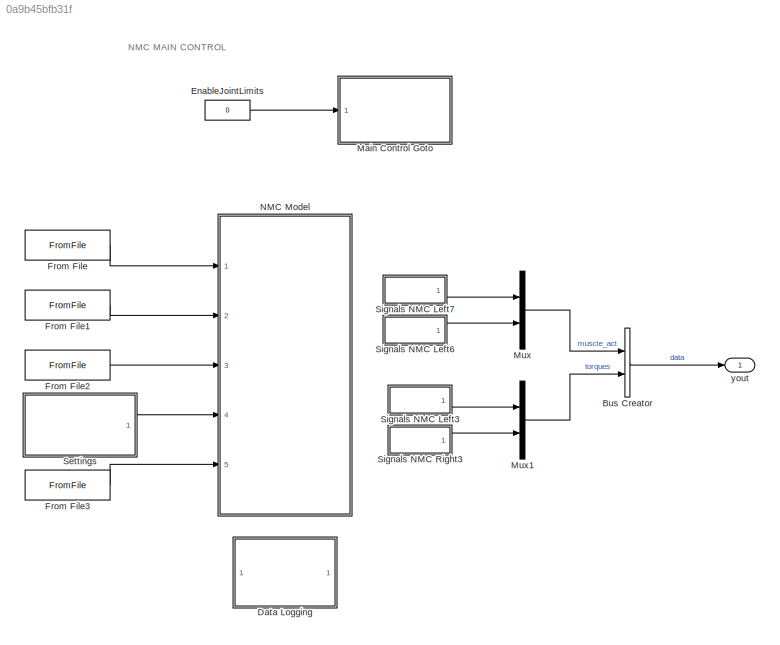
MODEL slx_0a9b45bfb31f
KIND model
CONFIG AbsTol = auto
CONFIG EnableMultiTasking = on
CONFIG FixedStep = ts
CONFIG InitFcn = IID_runScripts_inv;
CONFIG MaxStep = auto
CONFIG MinStep = auto
CONFIG RelTol = 1e-3
CONFIG SampleTimeConstraint = Unconstrained
CONFIG Solver = ode3
CONFIG SolverName = ode3
CONFIG StartTime = 0.0
CONFIG StopTime = tend
BLOCK [BusCreator] Bus Creator
  DisplayOption = bar
  InheritFromInputs = on
  Inputs = 2
  Ports = [2, 1]
BLOCK [SubSystem] Data Logging
  Commented = on
  Ports = []
  RequestExecContextInheritance = off
  Variant = off
BLOCK [SubSystem] Data Logging/Angles1
  Ports = [0, 1]
  RequestExecContextInheritance = off
  Variant = off
BLOCK [Outport] Data Logging/Angles1/Angles
  IconDisplay = Port number
BLOCK [Constant] Data Logging/Angles1/Constant
  Value = zeros(2,1)
BLOCK [Constant] Data Logging/Angles1/Constant1
  Value = zeros(2,1)
BLOCK [From] Data Logging/Angles1/From
  GotoTag = Lphi34dphi34
  TagVisibility = global
BLOCK [From] Data Logging/Angles1/From10
  GotoTag = Rphi23dphi23
  TagVisibility = global
BLOCK [From] Data Logging/Angles1/From11
  GotoTag = Rphi12dphi12
  TagVisibility = global
BLOCK [From] Data Logging/Angles1/From2
  GotoTag = Lphi23dphi23
  TagVisibility = global
BLOCK [From] Data Logging/Angles1/From3
  GotoTag = Lphi12dphi12
  TagVisibility = global
BLOCK [From] Data Logging/Angles1/From8
  GotoTag = Rphi34dphi34
  TagVisibility = global
BLOCK [Mux] Data Logging/Angles1/Mux
  DisplayOption = bar
  Inputs = 8
  Ports = [8, 1]
BLOCK [SubSystem] Data Logging/BodyInfo1
  Ports = [3]
  RequestExecContextInheritance = off
  Variant = off
BLOCK [Inport] Data Logging/BodyInfo1/Angles
  IconDisplay = Port number
BLOCK [Inport] Data Logging/BodyInfo1/Loads
  IconDisplay = Port number
  Port = 3
BLOCK [Mux] Data Logging/BodyInfo1/Mux1
  DisplayOption = bar
  Inputs = 3
  Ports = [3, 1]
BLOCK [Inport] Data Logging/BodyInfo1/Postitions
  IconDisplay = Port number
  Port = 2
BLOCK [ToFile] Data Logging/BodyInfo1/To File8
  Filename = Records/BodyInfo
  Ports = [1]
BLOCK [From] Data Logging/CPG_Stim1
  CloseFcn = tagdialog Close
  GotoTag = RStance
  TagVisibility = global
BLOCK [SubSystem] Data Logging/Dist1
  Ports = [0, 1]
  RequestExecContextInheritance = off
  Variant = off
BLOCK [From] Data Logging/Dist1/CPG_Stim1
  CloseFcn = tagdialog Close
  GotoTag = xyzHAT_D_sag
  TagVisibility = global
BLOCK [Outport] Data Logging/Dist1/Dist
  IconDisplay = Port number
BLOCK [SubSystem] Data Logging/Disturbances1
  Ports = [1]
  RequestExecContextInheritance = off
  Variant = off
BLOCK [Inport] Data Logging/Disturbances1/Dist
  IconDisplay = Port number
BLOCK [ToFile] Data Logging/Disturbances1/To File21
  Filename = Records/Disturbance
  Ports = [1]
BLOCK [From] Data Logging/From10
  GotoTag = dxyzCOM
  TagVisibility = global
BLOCK [From] Data Logging/From11
  GotoTag = M11_Control
  TagVisibility = global
BLOCK [From] Data Logging/From12
  GotoTag = R_M11_TOT
  TagVisibility = global
BLOCK [From] Data Logging/From13
  GotoTag = L_M_TOT
  TagVisibility = global
BLOCK [From] Data Logging/From14
  GotoTag = R_M_TOT
  TagVisibility = global
BLOCK [From] Data Logging/From15
  CloseFcn = tagdialog Close
  GotoTag = front_dv_R
  TagVisibility = global
BLOCK [From] Data Logging/From16
  GotoTag = front_v_est
  TagVisibility = global
BLOCK [From] Data Logging/From17
  GotoTag = L_M11_TOT
  TagVisibility = global
BLOCK [From] Data Logging/From18
  GotoTag = xyzCOM
  TagVisibility = global
BLOCK [From] Data Logging/From19
  CloseFcn = tagdialog Close
  GotoTag = front_dv_L
  TagVisibility = global
BLOCK [From] Data Logging/From4
  GotoTag = rotTrunk
  TagVisibility = global
BLOCK [From] Data Logging/From5
  GotoTag = theta
  TagVisibility = global
BLOCK [SubSystem] Data Logging/Joint Torques2
  Ports = [1]
  RequestExecContextInheritance = off
  Variant = off
BLOCK [Inport] Data Logging/Joint Torques2/Target
  IconDisplay = Port number
BLOCK [ToFile] Data Logging/Joint Torques2/To File12
  Filename = Records/TargetAngle
  Ports = [1]
BLOCK [SubSystem] Data Logging/Joint TorquesPassive1
  Ports = [2]
  RequestExecContextInheritance = off
  Variant = off
BLOCK [Inport] Data Logging/Joint TorquesPassive1/LTor
  IconDisplay = Port number
BLOCK [Inport] Data Logging/Joint TorquesPassive1/RTor
  IconDisplay = Port number
  Port = 2
BLOCK [ToFile] Data Logging/Joint TorquesPassive1/To File12
  Filename = Records/L_Tor_Passive
  Ports = [1]
BLOCK [ToFile] Data Logging/Joint TorquesPassive1/To File9
  Filename = Records/R_Tor_Passvie
  Ports = [1]
BLOCK [SubSystem] Data Logging/Joint TorquesTotal1
  Ports = [2]
  RequestExecContextInheritance = off
  Variant = off
BLOCK [Inport] Data Logging/Joint TorquesTotal1/LTor
  IconDisplay = Port number
BLOCK [Inport] Data Logging/Joint TorquesTotal1/RTor
  IconDisplay = Port number
  Port = 2
BLOCK [ToFile] Data Logging/Joint TorquesTotal1/To File12
  Filename = Records/L_Tor
  Ports = [1]
BLOCK [ToFile] Data Logging/Joint TorquesTotal1/To File9
  Filename = Records/R_Tor
  Ports = [1]
BLOCK [SubSystem] Data Logging/Loads1
  Ports = [0, 1]
  RequestExecContextInheritance = off
  Variant = off
BLOCK [From] Data Logging/Loads1/From
  GotoTag = RLLoad
  TagVisibility = global
BLOCK [From] Data Logging/Loads1/From1
  GotoTag = LLLoad
  TagVisibility = global
BLOCK [Outport] Data Logging/Loads1/Loads
  IconDisplay = Port number
BLOCK [Mux] Data Logging/Loads1/Mux
  DisplayOption = bar
  Inputs = 2
  Ports = [2, 1]
BLOCK [SubSystem] Data Logging/M1
  Ports = [1]
  RequestExecContextInheritance = off
  Variant = off
BLOCK [Inport] Data Logging/M1/M11
  IconDisplay = Port number
BLOCK [ToFile] Data Logging/M1/To File2
  Filename = Records/M11
  Ports = [1]
BLOCK [SubSystem] Data Logging/Muscle Activation1
  Ports = [2]
  RequestExecContextInheritance = off
  Variant = off
BLOCK [Inport] Data Logging/Muscle Activation1/L_MA
  IconDisplay = Port number
BLOCK [Inport] Data Logging/Muscle Activation1/R_MA
  IconDisplay = Port number
  Port = 2
BLOCK [ToFile] Data Logging/Muscle Activation1/To File1
  Filename = Records/R_MA
  Ports = [1]
BLOCK [ToFile] Data Logging/Muscle Activation1/To File5
  Filename = Records/L_MA
  Ports = [1]
BLOCK [SubSystem] Data Logging/Muscle Power1
  Ports = [2]
  RequestExecContextInheritance = off
  Variant = off
BLOCK [Inport] Data Logging/Muscle Power1/L_MA
  IconDisplay = Port number
BLOCK [Inport] Data Logging/Muscle Power1/R_MA
  IconDisplay = Port number
  Port = 2
BLOCK [ToFile] Data Logging/Muscle Power1/To File1
  Filename = Records/R_Power
  Ports = [1]
BLOCK [ToFile] Data Logging/Muscle Power1/To File5
  Filename = Records/L_Power
  Ports = [1]
BLOCK [Mux] Data Logging/Mux3
  DisplayOption = bar
  Inputs = 2
  Ports = [2, 1]
BLOCK [Mux] Data Logging/Mux4
  DisplayOption = bar
  Inputs = 2
  Ports = [2, 1]
BLOCK [Mux] Data Logging/Mux5
  DisplayOption = bar
  Inputs = 8
  Ports = [8, 1]
BLOCK [From] Data Logging/NMC_Stim2
  CloseFcn = tagdialog Close
  GotoTag = LStance
  TagVisibility = global
BLOCK [SubSystem] Data Logging/Positions1
  Ports = [0, 1]
  RequestExecContextInheritance = off
  Variant = off
BLOCK [From] Data Logging/Positions1/From
  GotoTag = xyzHAT
  TagVisibility = global
BLOCK [From] Data Logging/Positions1/From1
  GotoTag = dxyzHAT
  TagVisibility = global
BLOCK [From] Data Logging/Positions1/From10
  GotoTag = xyzTrunk
  TagVisibility = global
BLOCK [From] Data Logging/Positions1/From11
  GotoTag = xyzLHeel
  TagVisibility = global
BLOCK [From] Data Logging/Positions1/From13
  GotoTag = xyzLBall
  TagVisibility = global
BLOCK [From] Data Logging/Positions1/From15
  GotoTag = xyzRHeel
  TagVisibility = global
BLOCK [From] Data Logging/Positions1/From17
  GotoTag = xyzRBall
  TagVisibility = global
BLOCK [From] Data Logging/Positions1/From2
  GotoTag = xyzLAnkle
  TagVisibility = global
BLOCK [From] Data Logging/Positions1/From3
  GotoTag = xyzLKnee
  TagVisibility = global
BLOCK [From] Data Logging/Positions1/From4
  GotoTag = xyzLHip
  TagVisibility = global
BLOCK [From] Data Logging/Positions1/From5
  GotoTag = dxyzLHip
  TagVisibility = global
BLOCK [From] Data Logging/Positions1/From6
  GotoTag = xyzRAnkle
  TagVisibility = global
BLOCK [From] Data Logging/Positions1/From7
  GotoTag = xyzRKnee
  TagVisibility = global
BLOCK [From] Data Logging/Positions1/From8
  GotoTag = xyzRHip
  TagVisibility = global
BLOCK [From] Data Logging/Positions1/From9
  GotoTag = dxyzRHip
  TagVisibility = global
BLOCK [Mux] Data Logging/Positions1/Mux
  DisplayOption = bar
  Inputs = 19
  Ports = [19, 1]
BLOCK [Outport] Data Logging/Positions1/Positions
  IconDisplay = Port number
BLOCK [Selector] Data Logging/Selector2
  IndexOptions = Index vector (dialog)
  Indices = [2]
  InputPortWidth = 2
  OutputSizes = 1
  Ports = [1, 1]
BLOCK [Selector] Data Logging/Selector3
  IndexOptions = Index vector (dialog)
  Indices = [2]
  InputPortWidth = 2
  OutputSizes = 1
  Ports = [1, 1]
BLOCK [SubSystem] Data Logging/Signals NMC Left1
  Ports = [0, 1]
  RequestExecContextInheritance = off
  Variant = off
BLOCK [From] Data Logging/Signals NMC Left1/From
  GotoTag = Lalpha_tgt
BLOCK [From] Data Logging/Signals NMC Left1/From1
  GotoTag = Ralpha_tgt
BLOCK [From] Data Logging/Signals NMC Left1/From2
  GotoTag = LhipR_tgt
BLOCK [From] Data Logging/Signals NMC Left1/From3
  GotoTag = RhipR_tgt
BLOCK [Mux] Data Logging/Signals NMC Left1/Mux
  DisplayOption = bar
  Ports = [4, 1]
BLOCK [Outport] Data Logging/Signals NMC Left1/Target
  IconDisplay = Port number
BLOCK [SubSystem] Data Logging/Signals NMC Left10
  Ports = [0, 1]
  RequestExecContextInheritance = off
  Variant = off
BLOCK [Mux] Data Logging/Signals NMC Left10/Mux
  DisplayOption = bar
  Inputs = 11
  Ports = [11, 1]
BLOCK [From] Data Logging/Signals NMC Left10/sig_par1
  CloseFcn = tagdialog Close
  GotoTag = LEnergyHFL
  TagVisibility = global
BLOCK [From] Data Logging/Signals NMC Left10/sig_par10
  CloseFcn = tagdialog Close
  GotoTag = LEnergyHAB
  TagVisibility = global
BLOCK [From] Data Logging/Signals NMC Left10/sig_par11
  CloseFcn = tagdialog Close
  GotoTag = LEnergyHAD
  TagVisibility = global
BLOCK [From] Data Logging/Signals NMC Left10/sig_par2
  CloseFcn = tagdialog Close
  GotoTag = LEnergyRF
  TagVisibility = global
BLOCK [From] Data Logging/Signals NMC Left10/sig_par3
  CloseFcn = tagdialog Close
  GotoTag = LEnergyVAS
  TagVisibility = global
BLOCK [From] Data Logging/Signals NMC Left10/sig_par4
  CloseFcn = tagdialog Close
  GotoTag = LEnergyTA
  TagVisibility = global
BLOCK [From] Data Logging/Signals NMC Left10/sig_par5
  CloseFcn = tagdialog Close
  GotoTag = LEnergySOL
  TagVisibility = global
BLOCK [From] Data Logging/Signals NMC Left10/sig_par6
  CloseFcn = tagdialog Close
  GotoTag = LEnergyGAS
  TagVisibility = global
BLOCK [From] Data Logging/Signals NMC Left10/sig_par7
  CloseFcn = tagdialog Close
  GotoTag = LEnergyBFSH
  TagVisibility = global
BLOCK [From] Data Logging/Signals NMC Left10/sig_par8
  CloseFcn = tagdialog Close
  GotoTag = LEnergyHAM
  TagVisibility = global
BLOCK [From] Data Logging/Signals NMC Left10/sig_par9
  CloseFcn = tagdialog Close
  GotoTag = LEnergyGLU
  TagVisibility = global
BLOCK [Outport] Data Logging/Signals NMC Left10/signals
  IconDisplay = Port number
BLOCK [SubSystem] Data Logging/Signals NMC Left2
  Ports = [0, 1]
  RequestExecContextInheritance = off
  Variant = off
BLOCK [Mux] Data Logging/Signals NMC Left2/Mux
  DisplayOption = bar
  Inputs = 11
  Ports = [11, 1]
BLOCK [From] Data Logging/Signals NMC Left2/sig_par1
  CloseFcn = tagdialog Close
  GotoTag = LStimHFL
  TagVisibility = global
BLOCK [From] Data Logging/Signals NMC Left2/sig_par10
  CloseFcn = tagdialog Close
  GotoTag = LStimHAB
  TagVisibility = global
BLOCK [From] Data Logging/Signals NMC Left2/sig_par11
  CloseFcn = tagdialog Close
  GotoTag = LStimHAD
  TagVisibility = global
BLOCK [From] Data Logging/Signals NMC Left2/sig_par2
  CloseFcn = tagdialog Close
  GotoTag = LStimRF
  TagVisibility = global
BLOCK [From] Data Logging/Signals NMC Left2/sig_par3
  CloseFcn = tagdialog Close
  GotoTag = LStimVAS
  TagVisibility = global
BLOCK [From] Data Logging/Signals NMC Left2/sig_par4
  CloseFcn = tagdialog Close
  GotoTag = LStimTA
  TagVisibility = global
BLOCK [From] Data Logging/Signals NMC Left2/sig_par5
  CloseFcn = tagdialog Close
  GotoTag = LStimSOL
  TagVisibility = global
BLOCK [From] Data Logging/Signals NMC Left2/sig_par6
  CloseFcn = tagdialog Close
  GotoTag = LStimGAS
  TagVisibility = global
BLOCK [From] Data Logging/Signals NMC Left2/sig_par7
  CloseFcn = tagdialog Close
  GotoTag = LStimBFSH
  TagVisibility = global
BLOCK [From] Data Logging/Signals NMC Left2/sig_par8
  CloseFcn = tagdialog Close
  GotoTag = LStimHAM
  TagVisibility = global
BLOCK [From] Data Logging/Signals NMC Left2/sig_par9
  CloseFcn = tagdialog Close
  GotoTag = LStimGLU
  TagVisibility = global
BLOCK [Outport] Data Logging/Signals NMC Left2/signals
  IconDisplay = Port number
BLOCK [SubSystem] Data Logging/Signals NMC Left5
  Ports = [0, 1]
  RequestExecContextInheritance = off
  Variant = off
BLOCK [Mux] Data Logging/Signals NMC Left5/Mux
  DisplayOption = bar
  Ports = [4, 1]
BLOCK [From] Data Logging/Signals NMC Left5/sig_par1
  CloseFcn = tagdialog Close
  GotoTag = LM34
  TagVisibility = global
BLOCK [From] Data Logging/Signals NMC Left5/sig_par2
  CloseFcn = tagdialog Close
  GotoTag = LM34R
  TagVisibility = global
BLOCK [From] Data Logging/Signals NMC Left5/sig_par3
  CloseFcn = tagdialog Close
  GotoTag = LM23
  TagVisibility = global
BLOCK [From] Data Logging/Signals NMC Left5/sig_par4
  CloseFcn = tagdialog Close
  GotoTag = LM12
  TagVisibility = global
BLOCK [Outport] Data Logging/Signals NMC Left5/signals
  IconDisplay = Port number
BLOCK [SubSystem] Data Logging/Signals NMC Left8
  Ports = [0, 1]
  RequestExecContextInheritance = off
  Variant = off
BLOCK [Mux] Data Logging/Signals NMC Left8/Mux
  DisplayOption = bar
  Ports = [4, 1]
BLOCK [From] Data Logging/Signals NMC Left8/sig_par1
  CloseFcn = tagdialog Close
  GotoTag = LHipStop
  TagVisibility = global
BLOCK [From] Data Logging/Signals NMC Left8/sig_par2
  CloseFcn = tagdialog Close
  GotoTag = LHipRStop
  TagVisibility = global
BLOCK [From] Data Logging/Signals NMC Left8/sig_par3
  CloseFcn = tagdialog Close
  GotoTag = LKneeStop
  TagVisibility = global
BLOCK [From] Data Logging/Signals NMC Left8/sig_par4
  CloseFcn = tagdialog Close
  GotoTag = LAnkleStop
  TagVisibility = global
BLOCK [Outport] Data Logging/Signals NMC Left8/signals
  IconDisplay = Port number
BLOCK [SubSystem] Data Logging/Signals NMC Left9
  Ports = [0, 1]
  RequestExecContextInheritance = off
  Variant = off
BLOCK [Mux] Data Logging/Signals NMC Left9/Mux
  DisplayOption = bar
  Inputs = 11
  Ports = [11, 1]
BLOCK [From] Data Logging/Signals NMC Left9/sig_par1
  CloseFcn = tagdialog Close
  GotoTag = REnergyHFL
  TagVisibility = global
BLOCK [From] Data Logging/Signals NMC Left9/sig_par10
  CloseFcn = tagdialog Close
  GotoTag = REnergyHAB
  TagVisibility = global
BLOCK [From] Data Logging/Signals NMC Left9/sig_par11
  CloseFcn = tagdialog Close
  GotoTag = REnergyHAD
  TagVisibility = global
BLOCK [From] Data Logging/Signals NMC Left9/sig_par2
  CloseFcn = tagdialog Close
  GotoTag = REnergyRF
  TagVisibility = global
BLOCK [From] Data Logging/Signals NMC Left9/sig_par3
  CloseFcn = tagdialog Close
  GotoTag = REnergyVAS
  TagVisibility = global
BLOCK [From] Data Logging/Signals NMC Left9/sig_par4
  CloseFcn = tagdialog Close
  GotoTag = REnergyTA
  TagVisibility = global
BLOCK [From] Data Logging/Signals NMC Left9/sig_par5
  CloseFcn = tagdialog Close
  GotoTag = REnergySOL
  TagVisibility = global
BLOCK [From] Data Logging/Signals NMC Left9/sig_par6
  CloseFcn = tagdialog Close
  GotoTag = REnergyGAS
  TagVisibility = global
BLOCK [From] Data Logging/Signals NMC Left9/sig_par7
  CloseFcn = tagdialog Close
  GotoTag = REnergyBFSH
  TagVisibility = global
BLOCK [From] Data Logging/Signals NMC Left9/sig_par8
  CloseFcn = tagdialog Close
  GotoTag = REnergyHAM
  TagVisibility = global
BLOCK [From] Data Logging/Signals NMC Left9/sig_par9
  CloseFcn = tagdialog Close
  GotoTag = REnergyGLU
  TagVisibility = global
BLOCK [Outport] Data Logging/Signals NMC Left9/signals
  IconDisplay = Port number
BLOCK [SubSystem] Data Logging/Signals NMC Right2
  Ports = [0, 1]
  RequestExecContextInheritance = off
  Variant = off
BLOCK [Mux] Data Logging/Signals NMC Right2/Mux
  DisplayOption = bar
  Ports = [4, 1]
BLOCK [From] Data Logging/Signals NMC Right2/sig_par1
  CloseFcn = tagdialog Close
  GotoTag = RHipStop
  TagVisibility = global
BLOCK [From] Data Logging/Signals NMC Right2/sig_par2
  CloseFcn = tagdialog Close
  GotoTag = RHipStopR
  TagVisibility = global
BLOCK [From] Data Logging/Signals NMC Right2/sig_par3
  CloseFcn = tagdialog Close
  GotoTag = RKneeStop
  TagVisibility = global
BLOCK [From] Data Logging/Signals NMC Right2/sig_par4
  CloseFcn = tagdialog Close
  GotoTag = RAnkleStop
  TagVisibility = global
BLOCK [Outport] Data Logging/Signals NMC Right2/signals
  IconDisplay = Port number
BLOCK [SubSystem] Data Logging/Signals NMC Right4
  Ports = [0, 1]
  RequestExecContextInheritance = off
  Variant = off
BLOCK [Mux] Data Logging/Signals NMC Right4/Mux
  DisplayOption = bar
  Inputs = 11
  Ports = [11, 1]
BLOCK [From] Data Logging/Signals NMC Right4/sig_par1
  CloseFcn = tagdialog Close
  GotoTag = RStimHFL
  TagVisibility = global
BLOCK [From] Data Logging/Signals NMC Right4/sig_par10
  CloseFcn = tagdialog Close
  GotoTag = RStimHAB
  TagVisibility = global
BLOCK [From] Data Logging/Signals NMC Right4/sig_par11
  CloseFcn = tagdialog Close
  GotoTag = RStimHAD
  TagVisibility = global
BLOCK [From] Data Logging/Signals NMC Right4/sig_par2
  CloseFcn = tagdialog Close
  GotoTag = RStimRF
  TagVisibility = global
BLOCK [From] Data Logging/Signals NMC Right4/sig_par3
  CloseFcn = tagdialog Close
  GotoTag = RStimVAS
  TagVisibility = global
BLOCK [From] Data Logging/Signals NMC Right4/sig_par4
  CloseFcn = tagdialog Close
  GotoTag = RStimTA
  TagVisibility = global
BLOCK [From] Data Logging/Signals NMC Right4/sig_par5
  CloseFcn = tagdialog Close
  GotoTag = RStimSOL
  TagVisibility = global
BLOCK [From] Data Logging/Signals NMC Right4/sig_par6
  CloseFcn = tagdialog Close
  GotoTag = RStimGAS
  TagVisibility = global
BLOCK [From] Data Logging/Signals NMC Right4/sig_par7
  CloseFcn = tagdialog Close
  GotoTag = RStimBFSH
  TagVisibility = global
BLOCK [From] Data Logging/Signals NMC Right4/sig_par8
  CloseFcn = tagdialog Close
  GotoTag = RStimHAM
  TagVisibility = global
BLOCK [From] Data Logging/Signals NMC Right4/sig_par9
  CloseFcn = tagdialog Close
  GotoTag = RStimGLU
  TagVisibility = global
BLOCK [Outport] Data Logging/Signals NMC Right4/signals
  IconDisplay = Port number
BLOCK [SubSystem] Data Logging/Signals NMC Right5
  Ports = [0, 1]
  RequestExecContextInheritance = off
  Variant = off
BLOCK [Mux] Data Logging/Signals NMC Right5/Mux
  DisplayOption = bar
  Ports = [4, 1]
BLOCK [From] Data Logging/Signals NMC Right5/sig_par1
  CloseFcn = tagdialog Close
  GotoTag = RM34
  TagVisibility = global
BLOCK [From] Data Logging/Signals NMC Right5/sig_par2
  CloseFcn = tagdialog Close
  GotoTag = RM34R
  TagVisibility = global
BLOCK [From] Data Logging/Signals NMC Right5/sig_par3
  CloseFcn = tagdialog Close
  GotoTag = RM23
  TagVisibility = global
BLOCK [From] Data Logging/Signals NMC Right5/sig_par4
  CloseFcn = tagdialog Close
  GotoTag = RM12
  TagVisibility = global
BLOCK [Outport] Data Logging/Signals NMC Right5/signals
  IconDisplay = Port number
BLOCK [SubSystem] Data Logging/StanceInfo1
  Ports = [2]
  RequestExecContextInheritance = off
  Variant = off
BLOCK [Inport] Data Logging/StanceInfo1/LStance
  IconDisplay = Port number
BLOCK [Mux] Data Logging/StanceInfo1/Mux4
  DisplayOption = bar
  Inputs = 2
  Ports = [2, 1]
BLOCK [Inport] Data Logging/StanceInfo1/RStance
  IconDisplay = Port number
  Port = 2
BLOCK [ToFile] Data Logging/StanceInfo1/To File4
  Filename = Records/StanceSig
  Ports = [1]
BLOCK [SubSystem] Data Logging/Subsystem1
  Ports = [1]
  RequestExecContextInheritance = off
  Variant = off
BLOCK [Inport] Data Logging/Subsystem1/RotTrunk
  IconDisplay = Port number
BLOCK [ToFile] Data Logging/Subsystem1/To File8
  Filename = Records/rotTrunk
  Ports = [1]
BLOCK [ToFile] Data Logging/To File1
  Filename = Records/COM
  Ports = [1]
BLOCK [Constant] EnableJointLimits
  OpenFcn = b = get_param(gcb,'value');   \nif (strcmp(b,'1')),           \n  set_param (gcb,'value','0');\nelse                          \n  set_param(gcb,'value','1'); \nend;
  OutDataTypeStr = double
  Value = 0
BLOCK [FromFile] From File
  FileName = HumanData/Angle_mat.mat
  SampleTime = 0
BLOCK [FromFile] From File1
  FileName = HumanData/G2Bf_mat.mat
  SampleTime = 0
BLOCK [FromFile] From File2
  FileName = HumanData/Load_mat.mat
  SampleTime = 0
BLOCK [FromFile] From File3
  FileName = HumanData/Phase_mat.mat
  SampleTime = 0
BLOCK [SubSystem] Main Control Goto
  Ports = [1]
  RequestExecContextInheritance = off
  Variant = off
BLOCK [Inport] Main Control Goto/EnableNMC_JointLimits
  IconDisplay = Port number
BLOCK [Goto] Main Control Goto/Goto24
  GotoTag = DisableNMC_JointLimitsIn
  TagVisibility = global
BLOCK [Mux] Mux
  DisplayOption = bar
  Inputs = 2
  Ports = [2, 1]
BLOCK [Mux] Mux1
  DisplayOption = bar
  Inputs = 2
  Ports = [2, 1]
BLOCK [SubSystem] NMC Model
  Ports = [5]
  RequestExecContextInheritance = off
  Variant = off
BLOCK [Inport] NMC Model/Angles
  IconDisplay = Port number
BLOCK [Demux] NMC Model/Demux
  DisplayOption = bar
  Outputs = 8
  Ports = [1, 8]
BLOCK [Demux] NMC Model/Demux1
  DisplayOption = bar
  Ports = [1, 4]
BLOCK [Demux] NMC Model/Demux2
  DisplayOption = bar
  Outputs = 2
  Ports = [1, 2]
BLOCK [Demux] NMC Model/Demux4
  DisplayOption = bar
  Ports = [1, 4]
BLOCK [SubSystem] NMC Model/Full Body Control
  Ports = []
  RequestExecContextInheritance = off
  Variant = off
BLOCK [From] NMC Model/Full Body Control/From1
  CloseFcn = tagdialog Close
  GotoTag = Rphi12dphi12
  TagVisibility = global
BLOCK [From] NMC Model/Full Body Control/From2
  CloseFcn = tagdialog Close
  GotoTag = Rphi34dphi34
  TagVisibility = global
BLOCK [From] NMC Model/Full Body Control/From3
  CloseFcn = tagdialog Close
  GotoTag = Rphi23dphi23
  TagVisibility = global
BLOCK [From] NMC Model/Full Body Control/From5
  CloseFcn = tagdialog Close
  GotoTag = Lphi12dphi12
  TagVisibility = global
BLOCK [From] NMC Model/Full Body Control/From54
  CloseFcn = tagdialog Close
  GotoTag = Lphi34dphi34
  TagVisibility = global
BLOCK [From] NMC Model/Full Body Control/From56
  CloseFcn = tagdialog Close
  GotoTag = Lphi23dphi23
  TagVisibility = global
BLOCK [Goto] NMC Model/Full Body Control/Goto1
  GotoTag = LM23
  TagVisibility = global
BLOCK [Goto] NMC Model/Full Body Control/Goto2
  GotoTag = RM23
  TagVisibility = global
BLOCK [Goto] NMC Model/Full Body Control/Goto3
  GotoTag = RM34
  TagVisibility = global
BLOCK [Goto] NMC Model/Full Body Control/Goto4
  GotoTag = LM34
  TagVisibility = global
BLOCK [Goto] NMC Model/Full Body Control/Goto5
  GotoTag = LM12
  TagVisibility = global
BLOCK [Goto] NMC Model/Full Body Control/Goto6
  GotoTag = RM12
  TagVisibility = global
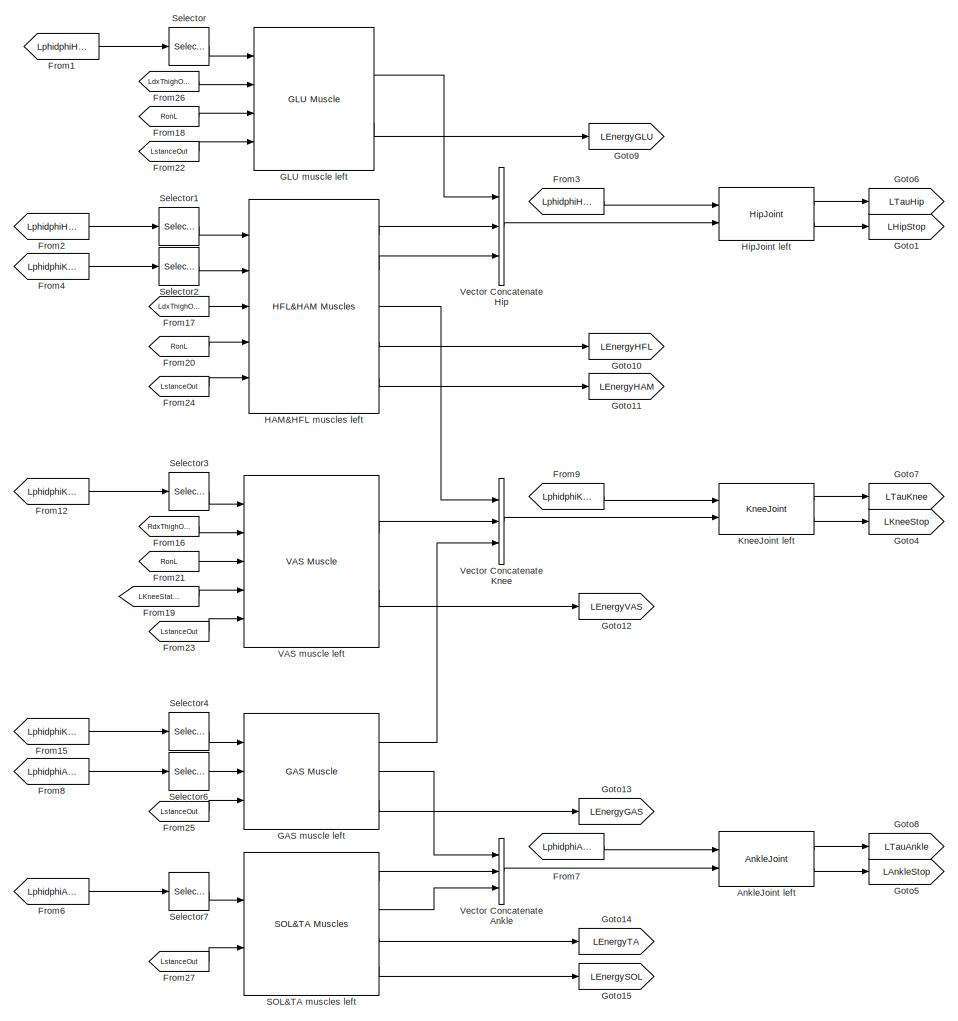
[diagram: NMC Model/Full Body Control/Left Side - part 1/2, most of the canvas]
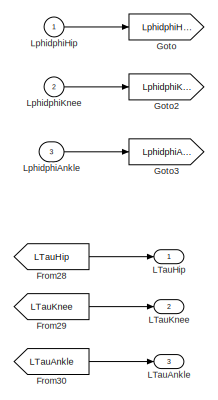
[diagram: NMC Model/Full Body Control/Left Side - part 2/2, top left region]
BLOCK [SubSystem] NMC Model/Full Body Control/Left Side
  Ports = [3, 3]
  RequestExecContextInheritance = off
  Variant = off
BLOCK [Reference] NMC Model/Full Body Control/Left Side/AnkleJoint left  REF=cpg_lib/AnkleJoint  (lib defined in slx_bab08664fd68)
  Ports = [2, 2]
  SourceBlock = cpg_lib/AnkleJoint
  SourceType = SubSystem
BLOCK [From] NMC Model/Full Body Control/Left Side/From1
  CloseFcn = tagdialog Close
  GotoTag = LphidphiHip
BLOCK [From] NMC Model/Full Body Control/Left Side/From12
  CloseFcn = tagdialog Close
  GotoTag = LphidphiKnee
BLOCK [From] NMC Model/Full Body Control/Left Side/From15
  CloseFcn = tagdialog Close
  GotoTag = LphidphiKnee
BLOCK [From] NMC Model/Full Body Control/Left Side/From16
  GotoTag = RdxThighOut
  TagVisibility = global
BLOCK [From] NMC Model/Full Body Control/Left Side/From17
  GotoTag = LdxThighOut
  TagVisibility = global
BLOCK [From] NMC Model/Full Body Control/Left Side/From18
  GotoTag = RonL
  TagVisibility = global
BLOCK [From] NMC Model/Full Body Control/Left Side/From19
  GotoTag = LKneeStateOut
  TagVisibility = global
BLOCK [From] NMC Model/Full Body Control/Left Side/From2
  CloseFcn = tagdialog Close
  GotoTag = LphidphiHip
BLOCK [From] NMC Model/Full Body Control/Left Side/From20
  GotoTag = RonL
  TagVisibility = global
BLOCK [From] NMC Model/Full Body Control/Left Side/From21
  GotoTag = RonL
  TagVisibility = global
BLOCK [From] NMC Model/Full Body Control/Left Side/From22
  GotoTag = LstanceOut
  TagVisibility = global
BLOCK [From] NMC Model/Full Body Control/Left Side/From23
  GotoTag = LstanceOut
  TagVisibility = global
BLOCK [From] NMC Model/Full Body Control/Left Side/From24
  GotoTag = LstanceOut
  TagVisibility = global
BLOCK [From] NMC Model/Full Body Control/Left Side/From25
  GotoTag = LstanceOut
  TagVisibility = global
BLOCK [From] NMC Model/Full Body Control/Left Side/From26
  GotoTag = LdxThighOut
  TagVisibility = global
BLOCK [From] NMC Model/Full Body Control/Left Side/From27
  GotoTag = LstanceOut
  TagVisibility = global
BLOCK [From] NMC Model/Full Body Control/Left Side/From28
  CloseFcn = tagdialog Close
  GotoTag = LTauHip
BLOCK [From] NMC Model/Full Body Control/Left Side/From29
  CloseFcn = tagdialog Close
  GotoTag = LTauKnee
BLOCK [From] NMC Model/Full Body Control/Left Side/From3
  CloseFcn = tagdialog Close
  GotoTag = LphidphiHip
BLOCK [From] NMC Model/Full Body Control/Left Side/From30
  CloseFcn = tagdialog Close
  GotoTag = LTauAnkle
BLOCK [From] NMC Model/Full Body Control/Left Side/From4
  CloseFcn = tagdialog Close
  GotoTag = LphidphiKnee
BLOCK [From] NMC Model/Full Body Control/Left Side/From6
  CloseFcn = tagdialog Close
  GotoTag = LphidphiAnkle
BLOCK [From] NMC Model/Full Body Control/Left Side/From7
  CloseFcn = tagdialog Close
  GotoTag = LphidphiAnkle
BLOCK [From] NMC Model/Full Body Control/Left Side/From8
  CloseFcn = tagdialog Close
  GotoTag = LphidphiAnkle
BLOCK [From] NMC Model/Full Body Control/Left Side/From9
  CloseFcn = tagdialog Close
  GotoTag = LphidphiKnee
BLOCK [Reference] NMC Model/Full Body Control/Left Side/GAS muscle left  REF=cpg_lib/GAS Muscle  (lib defined in slx_bab08664fd68)
  Ports = [3, 3]
  SourceBlock = cpg_lib/GAS Muscle
  SourceType = SubSystem
BLOCK [Reference] NMC Model/Full Body Control/Left Side/GLU muscle left  REF=cpg_lib/GLU Muscle  (lib defined in slx_bab08664fd68)
  Ports = [4, 2]
  SourceBlock = cpg_lib/GLU Muscle
  SourceType = SubSystem
BLOCK [Goto] NMC Model/Full Body Control/Left Side/Goto
  GotoTag = LphidphiHip
BLOCK [Goto] NMC Model/Full Body Control/Left Side/Goto1
  GotoTag = LHipStop
  TagVisibility = global
BLOCK [Goto] NMC Model/Full Body Control/Left Side/Goto10
  GotoTag = LEnergyHFL
  TagVisibility = global
BLOCK [Goto] NMC Model/Full Body Control/Left Side/Goto11
  GotoTag = LEnergyHAM
  TagVisibility = global
BLOCK [Goto] NMC Model/Full Body Control/Left Side/Goto12
  GotoTag = LEnergyVAS
  TagVisibility = global
BLOCK [Goto] NMC Model/Full Body Control/Left Side/Goto13
  GotoTag = LEnergyGAS
  TagVisibility = global
BLOCK [Goto] NMC Model/Full Body Control/Left Side/Goto14
  GotoTag = LEnergyTA
  TagVisibility = global
BLOCK [Goto] NMC Model/Full Body Control/Left Side/Goto15
  GotoTag = LEnergySOL
  TagVisibility = global
BLOCK [Goto] NMC Model/Full Body Control/Left Side/Goto2
  GotoTag = LphidphiKnee
BLOCK [Goto] NMC Model/Full Body Control/Left Side/Goto3
  GotoTag = LphidphiAnkle
BLOCK [Goto] NMC Model/Full Body Control/Left Side/Goto4
  GotoTag = LKneeStop
  TagVisibility = global
BLOCK [Goto] NMC Model/Full Body Control/Left Side/Goto5
  GotoTag = LAnkleStop
  TagVisibility = global
BLOCK [Goto] NMC Model/Full Body Control/Left Side/Goto6
  GotoTag = LTauHip
BLOCK [Goto] NMC Model/Full Body Control/Left Side/Goto7
  GotoTag = LTauKnee
BLOCK [Goto] NMC Model/Full Body Control/Left Side/Goto8
  GotoTag = LTauAnkle
BLOCK [Goto] NMC Model/Full Body Control/Left Side/Goto9
  GotoTag = LEnergyGLU
  TagVisibility = global
BLOCK [Reference] NMC Model/Full Body Control/Left Side/HAM&HFL muscles left  REF=cpg_lib/HFL&HAM Muscles  (lib defined in slx_bab08664fd68)
  Ports = [5, 5]
  SourceBlock = cpg_lib/HFL&HAM Muscles
  SourceType = SubSystem
BLOCK [Reference] NMC Model/Full Body Control/Left Side/HipJoint left  REF=cpg_lib/HipJoint  (lib defined in slx_bab08664fd68)
  Ports = [2, 2]
  SourceBlock = cpg_lib/HipJoint
  SourceType = SubSystem
BLOCK [Reference] NMC Model/Full Body Control/Left Side/KneeJoint left  REF=cpg_lib/KneeJoint  (lib defined in slx_bab08664fd68)
  Ports = [2, 2]
  SourceBlock = cpg_lib/KneeJoint
  SourceType = SubSystem
BLOCK [Outport] NMC Model/Full Body Control/Left Side/LTauAnkle
  IconDisplay = Port number
  Port = 3
BLOCK [Outport] NMC Model/Full Body Control/Left Side/LTauHip
  IconDisplay = Port number
BLOCK [Outport] NMC Model/Full Body Control/Left Side/LTauKnee
  IconDisplay = Port number
  Port = 2
BLOCK [Inport] NMC Model/Full Body Control/Left Side/LphidphiAnkle
  IconDisplay = Port number
  Port = 3
BLOCK [Inport] NMC Model/Full Body Control/Left Side/LphidphiHip
  IconDisplay = Port number
BLOCK [Inport] NMC Model/Full Body Control/Left Side/LphidphiKnee
  IconDisplay = Port number
  Port = 2
BLOCK [Reference] NMC Model/Full Body Control/Left Side/SOL&TA muscles left  REF=cpg_lib/SOL&TA Muscles  (lib defined in slx_bab08664fd68)
  Ports = [2, 4]
  SourceBlock = cpg_lib/SOL&TA Muscles
  SourceType = SubSystem
BLOCK [Selector] NMC Model/Full Body Control/Left Side/Selector
  IndexOptions = Index vector (dialog)
  Indices = [1 ]
  InputPortWidth = 2
  OutputSizes = 1
  Ports = [1, 1]
BLOCK [Selector] NMC Model/Full Body Control/Left Side/Selector1
  IndexOptions = Index vector (dialog)
  Indices = [1 ]
  InputPortWidth = 2
  OutputSizes = 1
  Ports = [1, 1]
BLOCK [Selector] NMC Model/Full Body Control/Left Side/Selector2
  IndexOptions = Index vector (dialog)
  Indices = [1 ]
  InputPortWidth = 2
  OutputSizes = 1
  Ports = [1, 1]
BLOCK [Selector] NMC Model/Full Body Control/Left Side/Selector3
  IndexOptions = Index vector (dialog)
  Indices = [1 ]
  InputPortWidth = 2
  OutputSizes = 1
  Ports = [1, 1]
BLOCK [Selector] NMC Model/Full Body Control/Left Side/Selector4
  IndexOptions = Index vector (dialog)
  Indices = [1 ]
  InputPortWidth = 2
  OutputSizes = 1
  Ports = [1, 1]
BLOCK [Selector] NMC Model/Full Body Control/Left Side/Selector6
  IndexOptions = Index vector (dialog)
  Indices = [1 ]
  InputPortWidth = 2
  OutputSizes = 1
  Ports = [1, 1]
BLOCK [Selector] NMC Model/Full Body Control/Left Side/Selector7
  IndexOptions = Index vector (dialog)
  Indices = [1 ]
  InputPortWidth = 2
  OutputSizes = 1
  Ports = [1, 1]
BLOCK [Reference] NMC Model/Full Body Control/Left Side/VAS muscle left  REF=cpg_lib/VAS Muscle  (lib defined in slx_bab08664fd68)
  Ports = [5, 2]
  SourceBlock = cpg_lib/VAS Muscle
  SourceType = SubSystem
BLOCK [Concatenate] NMC Model/Full Body Control/Left Side/Vector ConcatenateAnkle
  NumInputs = 3
  Ports = [3, 1]
BLOCK [Concatenate] NMC Model/Full Body Control/Left Side/Vector ConcatenateHip
  NumInputs = 3
  Ports = [3, 1]
BLOCK [Concatenate] NMC Model/Full Body Control/Left Side/Vector ConcatenateKnee
  NumInputs = 3
  Ports = [3, 1]
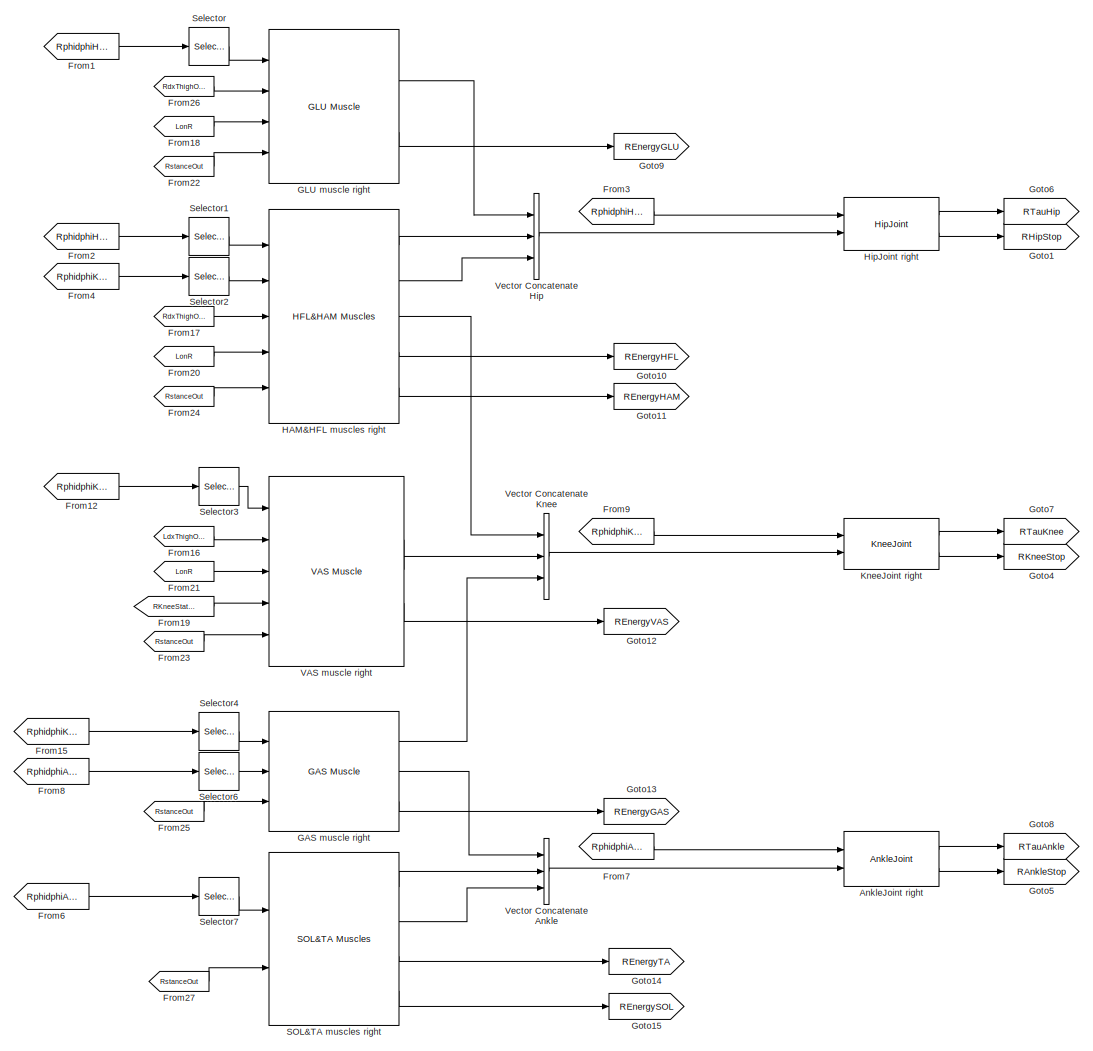
[diagram: NMC Model/Full Body Control/Right Side - part 1/2, most of the canvas]
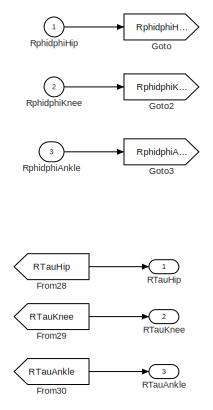
[diagram: NMC Model/Full Body Control/Right Side - part 2/2, middle left region]
BLOCK [SubSystem] NMC Model/Full Body Control/Right Side
  Ports = [3, 3]
  RequestExecContextInheritance = off
  Variant = off
BLOCK [Reference] NMC Model/Full Body Control/Right Side/AnkleJoint right  REF=cpg_lib/AnkleJoint  (lib defined in slx_bab08664fd68)
  Ports = [2, 2]
  SourceBlock = cpg_lib/AnkleJoint
  SourceType = SubSystem
BLOCK [From] NMC Model/Full Body Control/Right Side/From1
  CloseFcn = tagdialog Close
  GotoTag = RphidphiHip
BLOCK [From] NMC Model/Full Body Control/Right Side/From12
  CloseFcn = tagdialog Close
  GotoTag = RphidphiKnee
BLOCK [From] NMC Model/Full Body Control/Right Side/From15
  CloseFcn = tagdialog Close
  GotoTag = RphidphiKnee
BLOCK [From] NMC Model/Full Body Control/Right Side/From16
  GotoTag = LdxThighOut
  TagVisibility = global
BLOCK [From] NMC Model/Full Body Control/Right Side/From17
  GotoTag = RdxThighOut
  TagVisibility = global
BLOCK [From] NMC Model/Full Body Control/Right Side/From18
  GotoTag = LonR
  TagVisibility = global
BLOCK [From] NMC Model/Full Body Control/Right Side/From19
  GotoTag = RKneeStateOut
  TagVisibility = global
BLOCK [From] NMC Model/Full Body Control/Right Side/From2
  CloseFcn = tagdialog Close
  GotoTag = RphidphiHip
BLOCK [From] NMC Model/Full Body Control/Right Side/From20
  GotoTag = LonR
  TagVisibility = global
BLOCK [From] NMC Model/Full Body Control/Right Side/From21
  GotoTag = LonR
  TagVisibility = global
BLOCK [From] NMC Model/Full Body Control/Right Side/From22
  GotoTag = RstanceOut
  TagVisibility = global
BLOCK [From] NMC Model/Full Body Control/Right Side/From23
  GotoTag = RstanceOut
  TagVisibility = global
BLOCK [From] NMC Model/Full Body Control/Right Side/From24
  GotoTag = RstanceOut
  TagVisibility = global
BLOCK [From] NMC Model/Full Body Control/Right Side/From25
  GotoTag = RstanceOut
  TagVisibility = global
BLOCK [From] NMC Model/Full Body Control/Right Side/From26
  GotoTag = RdxThighOut
  TagVisibility = global
BLOCK [From] NMC Model/Full Body Control/Right Side/From27
  GotoTag = RstanceOut
  TagVisibility = global
BLOCK [From] NMC Model/Full Body Control/Right Side/From28
  CloseFcn = tagdialog Close
  GotoTag = RTauHip
BLOCK [From] NMC Model/Full Body Control/Right Side/From29
  CloseFcn = tagdialog Close
  GotoTag = RTauKnee
BLOCK [From] NMC Model/Full Body Control/Right Side/From3
  CloseFcn = tagdialog Close
  GotoTag = RphidphiHip
BLOCK [From] NMC Model/Full Body Control/Right Side/From30
  CloseFcn = tagdialog Close
  GotoTag = RTauAnkle
BLOCK [From] NMC Model/Full Body Control/Right Side/From4
  CloseFcn = tagdialog Close
  GotoTag = RphidphiKnee
BLOCK [From] NMC Model/Full Body Control/Right Side/From6
  CloseFcn = tagdialog Close
  GotoTag = RphidphiAnkle
BLOCK [From] NMC Model/Full Body Control/Right Side/From7
  CloseFcn = tagdialog Close
  GotoTag = RphidphiAnkle
BLOCK [From] NMC Model/Full Body Control/Right Side/From8
  CloseFcn = tagdialog Close
  GotoTag = RphidphiAnkle
BLOCK [From] NMC Model/Full Body Control/Right Side/From9
  CloseFcn = tagdialog Close
  GotoTag = RphidphiKnee
BLOCK [Reference] NMC Model/Full Body Control/Right Side/GAS muscle right  REF=cpg_lib/GAS Muscle  (lib defined in slx_bab08664fd68)
  Ports = [3, 3]
  SourceBlock = cpg_lib/GAS Muscle
  SourceType = SubSystem
BLOCK [Reference] NMC Model/Full Body Control/Right Side/GLU muscle right  REF=cpg_lib/GLU Muscle  (lib defined in slx_bab08664fd68)
  Ports = [4, 2]
  SourceBlock = cpg_lib/GLU Muscle
  SourceType = SubSystem
BLOCK [Goto] NMC Model/Full Body Control/Right Side/Goto
  GotoTag = RphidphiHip
BLOCK [Goto] NMC Model/Full Body Control/Right Side/Goto1
  GotoTag = RHipStop
  TagVisibility = global
BLOCK [Goto] NMC Model/Full Body Control/Right Side/Goto10
  GotoTag = REnergyHFL
  TagVisibility = global
BLOCK [Goto] NMC Model/Full Body Control/Right Side/Goto11
  GotoTag = REnergyHAM
  TagVisibility = global
BLOCK [Goto] NMC Model/Full Body Control/Right Side/Goto12
  GotoTag = REnergyVAS
  TagVisibility = global
BLOCK [Goto] NMC Model/Full Body Control/Right Side/Goto13
  GotoTag = REnergyGAS
  TagVisibility = global
BLOCK [Goto] NMC Model/Full Body Control/Right Side/Goto14
  GotoTag = REnergyTA
  TagVisibility = global
BLOCK [Goto] NMC Model/Full Body Control/Right Side/Goto15
  GotoTag = REnergySOL
  TagVisibility = global
BLOCK [Goto] NMC Model/Full Body Control/Right Side/Goto2
  GotoTag = RphidphiKnee
BLOCK [Goto] NMC Model/Full Body Control/Right Side/Goto3
  GotoTag = RphidphiAnkle
BLOCK [Goto] NMC Model/Full Body Control/Right Side/Goto4
  GotoTag = RKneeStop
  TagVisibility = global
BLOCK [Goto] NMC Model/Full Body Control/Right Side/Goto5
  GotoTag = RAnkleStop
  TagVisibility = global
BLOCK [Goto] NMC Model/Full Body Control/Right Side/Goto6
  GotoTag = RTauHip
BLOCK [Goto] NMC Model/Full Body Control/Right Side/Goto7
  GotoTag = RTauKnee
BLOCK [Goto] NMC Model/Full Body Control/Right Side/Goto8
  GotoTag = RTauAnkle
BLOCK [Goto] NMC Model/Full Body Control/Right Side/Goto9
  GotoTag = REnergyGLU
  TagVisibility = global
BLOCK [Reference] NMC Model/Full Body Control/Right Side/HAM&HFL muscles right  REF=cpg_lib/HFL&HAM Muscles  (lib defined in slx_bab08664fd68)
  Ports = [5, 5]
  SourceBlock = cpg_lib/HFL&HAM Muscles
  SourceType = SubSystem
BLOCK [Reference] NMC Model/Full Body Control/Right Side/HipJoint right  REF=cpg_lib/HipJoint  (lib defined in slx_bab08664fd68)
  Ports = [2, 2]
  SourceBlock = cpg_lib/HipJoint
  SourceType = SubSystem
BLOCK [Reference] NMC Model/Full Body Control/Right Side/KneeJoint right  REF=cpg_lib/KneeJoint  (lib defined in slx_bab08664fd68)
  Ports = [2, 2]
  SourceBlock = cpg_lib/KneeJoint
  SourceType = SubSystem
BLOCK [Outport] NMC Model/Full Body Control/Right Side/RTauAnkle
  IconDisplay = Port number
  Port = 3
BLOCK [Outport] NMC Model/Full Body Control/Right Side/RTauHip
  IconDisplay = Port number
BLOCK [Outport] NMC Model/Full Body Control/Right Side/RTauKnee
  IconDisplay = Port number
  Port = 2
BLOCK [Inport] NMC Model/Full Body Control/Right Side/RphidphiAnkle
  IconDisplay = Port number
  Port = 3
BLOCK [Inport] NMC Model/Full Body Control/Right Side/RphidphiHip
  IconDisplay = Port number
BLOCK [Inport] NMC Model/Full Body Control/Right Side/RphidphiKnee
  IconDisplay = Port number
  Port = 2
BLOCK [Reference] NMC Model/Full Body Control/Right Side/SOL&TA muscles right  REF=cpg_lib/SOL&TA Muscles  (lib defined in slx_bab08664fd68)
  Ports = [2, 4]
  SourceBlock = cpg_lib/SOL&TA Muscles
  SourceType = SubSystem
BLOCK [Selector] NMC Model/Full Body Control/Right Side/Selector
  IndexOptions = Index vector (dialog)
  Indices = [1 ]
  InputPortWidth = 2
  OutputSizes = 1
  Ports = [1, 1]
BLOCK [Selector] NMC Model/Full Body Control/Right Side/Selector1
  IndexOptions = Index vector (dialog)
  Indices = [1 ]
  InputPortWidth = 2
  OutputSizes = 1
  Ports = [1, 1]
BLOCK [Selector] NMC Model/Full Body Control/Right Side/Selector2
  IndexOptions = Index vector (dialog)
  Indices = [1 ]
  InputPortWidth = 2
  OutputSizes = 1
  Ports = [1, 1]
BLOCK [Selector] NMC Model/Full Body Control/Right Side/Selector3
  IndexOptions = Index vector (dialog)
  Indices = [1 ]
  InputPortWidth = 2
  OutputSizes = 1
  Ports = [1, 1]
BLOCK [Selector] NMC Model/Full Body Control/Right Side/Selector4
  IndexOptions = Index vector (dialog)
  Indices = [1 ]
  InputPortWidth = 2
  OutputSizes = 1
  Ports = [1, 1]
BLOCK [Selector] NMC Model/Full Body Control/Right Side/Selector6
  IndexOptions = Index vector (dialog)
  Indices = [1 ]
  InputPortWidth = 2
  OutputSizes = 1
  Ports = [1, 1]
BLOCK [Selector] NMC Model/Full Body Control/Right Side/Selector7
  IndexOptions = Index vector (dialog)
  Indices = [1 ]
  InputPortWidth = 2
  OutputSizes = 1
  Ports = [1, 1]
BLOCK [Reference] NMC Model/Full Body Control/Right Side/VAS muscle right  REF=cpg_lib/VAS Muscle  (lib defined in slx_bab08664fd68)
  Ports = [5, 2]
  SourceBlock = cpg_lib/VAS Muscle
  SourceType = SubSystem
BLOCK [Concatenate] NMC Model/Full Body Control/Right Side/Vector ConcatenateAnkle
  NumInputs = 3
  Ports = [3, 1]
BLOCK [Concatenate] NMC Model/Full Body Control/Right Side/Vector ConcatenateHip
  NumInputs = 3
  Ports = [3, 1]
BLOCK [Concatenate] NMC Model/Full Body Control/Right Side/Vector ConcatenateKnee
  NumInputs = 3
  Ports = [3, 1]
BLOCK [SubSystem] NMC Model/Full Body Control/Sensors
  Ports = []
  RequestExecContextInheritance = off
  Variant = off
BLOCK [Reference] NMC Model/Full Body Control/Sensors/ 1  REF=simulink/Logic and Bit
Operations/Compare
To Constant
  Ports = [1, 1]
  SourceBlock = simulink/Logic and Bit\nOperations/Compare\nTo Constant
  SourceType = Compare To Constant
BLOCK [Reference] NMC Model/Full Body Control/Sensors/ 2  REF=simulink/Logic and Bit
Operations/Compare
To Constant
  Commented = on
  Ports = [1, 1]
  SourceBlock = simulink/Logic and Bit\nOperations/Compare\nTo Constant
  SourceType = Compare To Constant
BLOCK [Reference] NMC Model/Full Body Control/Sensors/ 3  REF=simulink/Logic and Bit
Operations/Compare
To Constant
  Commented = on
  Ports = [1, 1]
  SourceBlock = simulink/Logic and Bit\nOperations/Compare\nTo Constant
  SourceType = Compare To Constant
BLOCK [Reference] NMC Model/Full Body Control/Sensors/10  REF=simulink/Logic and Bit
Operations/Compare
To Constant
  Commented = on
  Ports = [1, 1]
  SourceBlock = simulink/Logic and Bit\nOperations/Compare\nTo Constant
  SourceType = Compare To Constant
BLOCK [Reference] NMC Model/Full Body Control/Sensors/11  REF=simulink/Logic and Bit
Operations/Compare
To Constant
  Commented = on
  Ports = [1, 1]
  SourceBlock = simulink/Logic and Bit\nOperations/Compare\nTo Constant
  SourceType = Compare To Constant
BLOCK [Reference] NMC Model/Full Body Control/Sensors/12  REF=simulink/Logic and Bit
Operations/Compare
To Constant
  Commented = on
  Ports = [1, 1]
  SourceBlock = simulink/Logic and Bit\nOperations/Compare\nTo Constant
  SourceType = Compare To Constant
BLOCK [Reference] NMC Model/Full Body Control/Sensors/6  REF=simulink/Logic and Bit
Operations/Compare
To Constant
  Ports = [1, 1]
  SourceBlock = simulink/Logic and Bit\nOperations/Compare\nTo Constant
  SourceType = Compare To Constant
BLOCK [Reference] NMC Model/Full Body Control/Sensors/7  REF=simulink/Logic and Bit
Operations/Compare
To Constant
  Commented = on
  Ports = [1, 1]
  SourceBlock = simulink/Logic and Bit\nOperations/Compare\nTo Constant
  SourceType = Compare To Constant
BLOCK [Reference] NMC Model/Full Body Control/Sensors/8  REF=simulink/Logic and Bit
Operations/Compare
To Constant
  Commented = on
  Ports = [1, 1]
  SourceBlock = simulink/Logic and Bit\nOperations/Compare\nTo Constant
  SourceType = Compare To Constant
BLOCK [Reference] NMC Model/Full Body Control/Sensors/9  REF=simulink/Logic and Bit
Operations/Compare
To Constant
  Commented = on
  Ports = [1, 1]
  SourceBlock = simulink/Logic and Bit\nOperations/Compare\nTo Constant
  SourceType = Compare To Constant
BLOCK [TransportDelay] NMC Model/Full Body Control/Sensors/Body Pitch loop delay
  DelayTime = ShortDelay
  Ports = [1, 1]
BLOCK [TransportDelay] NMC Model/Full Body Control/Sensors/Body Pitch loop delay.
  DelayTime = ShortDelay
  Ports = [1, 1]
BLOCK [SubSystem] NMC Model/Full Body Control/Sensors/Cross Influence Detection
  Commented = on
  Ports = [2, 3]
  RequestExecContextInheritance = off
  Variant = off
BLOCK [HitCross] NMC Model/Full Body Control/Sensors/Cross Influence Detection/DSup ends
  HitCrossingDirection = falling
  HitCrossingOffset = 0.5
  Ports = [1, 1]
  ZeroCross = off
BLOCK [Logic] NMC Model/Full Body Control/Sensors/Cross Influence Detection/Double Support?
  AllPortsSameDT = off
  Ports = [2, 1]
BLOCK [Logic] NMC Model/Full Body Control/Sensors/Cross Influence Detection/Double Support?1
  AllPortsSameDT = off
  Ports = [2, 1]
BLOCK [Logic] NMC Model/Full Body Control/Sensors/Cross Influence Detection/Double Support?4
  AllPortsSameDT = off
  Ports = [2, 1]
BLOCK [Outport] NMC Model/Full Body Control/Sensors/Cross Influence Detection/Flight
  IconDisplay = Port number
  OutDataTypeStr = double
  Port = 2
BLOCK [Logic] NMC Model/Full Body Control/Sensors/Cross Influence Detection/Flight?
  AllPortsSameDT = off
  Operator = NOR
  Ports = [2, 1]
BLOCK [HitCross] NMC Model/Full Body Control/Sensors/Cross Influence Detection/LLeg starts DSup
  HitCrossingDirection = rising
  HitCrossingOffset = 0.5
  Ports = [1, 1]
  ZeroCross = off
BLOCK [Inport] NMC Model/Full Body Control/Sensors/Cross Influence Detection/LStance
  IconDisplay = Port number
  OutDataTypeStr = double
BLOCK [Outport] NMC Model/Full Body Control/Sensors/Cross Influence Detection/LonR
  IconDisplay = Port number
  OutDataTypeStr = double
  Port = 3
BLOCK [Memory] NMC Model/Full Body Control/Sensors/Cross Influence Detection/Memory
BLOCK [Memory] NMC Model/Full Body Control/Sensors/Cross Influence Detection/Memory3
BLOCK [HitCross] NMC Model/Full Body Control/Sensors/Cross Influence Detection/RLeg starts DSup
  HitCrossingDirection = rising
  HitCrossingOffset = 0.5
  Ports = [1, 1]
  ZeroCross = off
BLOCK [Inport] NMC Model/Full Body Control/Sensors/Cross Influence Detection/RStance
  IconDisplay = Port number
  OutDataTypeStr = double
  Port = 2
BLOCK [Outport] NMC Model/Full Body Control/Sensors/Cross Influence Detection/RonL
  IconDisplay = Port number
  OutDataTypeStr = double
BLOCK [Reference] NMC Model/Full Body Control/Sensors/Cross Influence Detection/S-R Flip-Flop  REF=simulink_extras/Flip Flops/S-R
Flip-Flop
  Ports = [2, 2]
  SourceBlock = simulink_extras/Flip Flops/S-R\nFlip-Flop
  SourceType = SRFlipFlop
BLOCK [Reference] NMC Model/Full Body Control/Sensors/Cross Influence Detection/S-R Flip-Flop1  REF=simulink_extras/Flip Flops/S-R
Flip-Flop
  Ports = [2, 2]
  SourceBlock = simulink_extras/Flip Flops/S-R\nFlip-Flop
  SourceType = SRFlipFlop
BLOCK [Terminator] NMC Model/Full Body Control/Sensors/Cross Influence Detection/Terminator1
BLOCK [Terminator] NMC Model/Full Body Control/Sensors/Cross Influence Detection/Terminator2
BLOCK [Reference] NMC Model/Full Body Control/Sensors/FootSensor  REF=cpg_lib/FootSensor  (lib defined in slx_bab08664fd68)
  Ports = [2, 4]
  SourceBlock = cpg_lib/FootSensor
  SourceType = SubSystem
BLOCK [From] NMC Model/Full Body Control/Sensors/From
  Commented = on
  GotoTag = LstanceOut
  TagVisibility = global
BLOCK [From] NMC Model/Full Body Control/Sensors/From1
  Commented = on
  GotoTag = RstanceOut
  TagVisibility = global
BLOCK [From] NMC Model/Full Body Control/Sensors/From10
  CloseFcn = tagdialog Close
  GotoTag = LLLoad
  TagVisibility = global
BLOCK [From] NMC Model/Full Body Control/Sensors/From11
  CloseFcn = tagdialog Close
  GotoTag = RLLoad
  TagVisibility = global
BLOCK [From] NMC Model/Full Body Control/Sensors/From113
  CloseFcn = tagdialog Close
  Commented = on
  GotoTag = phase
  TagVisibility = global
BLOCK [From] NMC Model/Full Body Control/Sensors/From15
  CloseFcn = tagdialog Close
  GotoTag = theta
  TagVisibility = global
BLOCK [From] NMC Model/Full Body Control/Sensors/From16
  CloseFcn = tagdialog Close
  GotoTag = dtheta
  TagVisibility = global
BLOCK [From] NMC Model/Full Body Control/Sensors/From2
  GotoTag = Rphi23dphi23
  TagVisibility = global
BLOCK [From] NMC Model/Full Body Control/Sensors/From3
  GotoTag = Lphi23dphi23
  TagVisibility = global
BLOCK [From] NMC Model/Full Body Control/Sensors/From4
  CloseFcn = tagdialog Close
  GotoTag = phase
  TagVisibility = global
BLOCK [Goto] NMC Model/Full Body Control/Sensors/Goto
  GotoTag = dThetaDelayed
  TagVisibility = global
BLOCK [Goto] NMC Model/Full Body Control/Sensors/Goto1
  GotoTag = ThetaDelayed
  TagVisibility = global
BLOCK [Goto] NMC Model/Full Body Control/Sensors/Goto11
  GotoTag = LstanceOut
  TagVisibility = global
BLOCK [Goto] NMC Model/Full Body Control/Sensors/Goto12
  GotoTag = RstanceOut
  TagVisibility = global
BLOCK [Goto] NMC Model/Full Body Control/Sensors/Goto13
  Commented = on
  GotoTag = RStance
  TagVisibility = global
BLOCK [Goto] NMC Model/Full Body Control/Sensors/Goto14
  GotoTag = RonL
  TagVisibility = global
BLOCK [Goto] NMC Model/Full Body Control/Sensors/Goto15
  GotoTag = LonR
  TagVisibility = global
BLOCK [Goto] NMC Model/Full Body Control/Sensors/Goto2
  Commented = on
  GotoTag = LStance
  TagVisibility = global
BLOCK [Goto] NMC Model/Full Body Control/Sensors/Goto3
  GotoTag = RdxThighOut
  TagVisibility = global
BLOCK [Goto] NMC Model/Full Body Control/Sensors/Goto4
  GotoTag = LdxThighOut
  TagVisibility = global
BLOCK [Goto] NMC Model/Full Body Control/Sensors/Goto5
  GotoTag = RKneeStateOut
  TagVisibility = global
BLOCK [Goto] NMC Model/Full Body Control/Sensors/Goto6
  GotoTag = LKneeStateOut
  TagVisibility = global
BLOCK [Reference] NMC Model/Full Body Control/Sensors/KneeSensor  REF=cpg_lib/KneeSensor  (lib defined in slx_bab08664fd68)
  Ports = [2, 2]
  SourceBlock = cpg_lib/KneeSensor
  SourceType = SubSystem
BLOCK [Gain] NMC Model/Full Body Control/Sensors/L Ball Skin Load Sensor
  Commented = on
  OutDataTypeStr = Inherit: Inherit via internal rule
  ParamDataTypeStr = Inherit: Inherit via internal rule
  SaturateOnIntegerOverflow = off
BLOCK [Gain] NMC Model/Full Body Control/Sensors/L Ball Skin Load Sensor1
  Commented = on
  OutDataTypeStr = Inherit: Inherit via internal rule
  ParamDataTypeStr = Inherit: Inherit via internal rule
  SaturateOnIntegerOverflow = off
BLOCK [Gain] NMC Model/Full Body Control/Sensors/L Ball Skin Load Sensor2
  Commented = on
  OutDataTypeStr = Inherit: Inherit via internal rule
  ParamDataTypeStr = Inherit: Inherit via internal rule
  SaturateOnIntegerOverflow = off
BLOCK [Gain] NMC Model/Full Body Control/Sensors/L Ball Skin Load Sensor3
  Commented = on
  OutDataTypeStr = Inherit: Inherit via internal rule
  ParamDataTypeStr = Inherit: Inherit via internal rule
  SaturateOnIntegerOverflow = off
BLOCK [Gain] NMC Model/Full Body Control/Sensors/L Ball Skin Load Sensor4
  Commented = on
  OutDataTypeStr = Inherit: Inherit via internal rule
  ParamDataTypeStr = Inherit: Inherit via internal rule
  SaturateOnIntegerOverflow = off
BLOCK [Gain] NMC Model/Full Body Control/Sensors/L Ball Skin Load Sensor5
  Commented = on
  OutDataTypeStr = Inherit: Inherit via internal rule
  ParamDataTypeStr = Inherit: Inherit via internal rule
  SaturateOnIntegerOverflow = off
BLOCK [Gain] NMC Model/Full Body Control/Sensors/L Ball Skin Load Sensor6
  Commented = on
  OutDataTypeStr = Inherit: Inherit via internal rule
  ParamDataTypeStr = Inherit: Inherit via internal rule
  SaturateOnIntegerOverflow = off
BLOCK [Gain] NMC Model/Full Body Control/Sensors/L Ball Skin Load Sensor7
  Commented = on
  OutDataTypeStr = Inherit: Inherit via internal rule
  ParamDataTypeStr = Inherit: Inherit via internal rule
  SaturateOnIntegerOverflow = off
BLOCK [Gain] NMC Model/Full Body Control/Sensors/L Knee Joint Sensor
  OutDataTypeStr = Inherit: Inherit via internal rule
  ParamDataTypeStr = Inherit: Inherit via internal rule
  SaturateOnIntegerOverflow = off
BLOCK [TransportDelay] NMC Model/Full Body Control/Sensors/L Stance afferent delay
  Commented = on
  DelayTime = MidDelay
  Ports = [1, 1]
BLOCK [Logic] NMC Model/Full Body Control/Sensors/Left Stance?
  AllPortsSameDT = off
  Commented = on
  Inputs = 4
  Operator = OR
  Ports = [4, 1]
BLOCK [Logic] NMC Model/Full Body Control/Sensors/Left Stance?1
  AllPortsSameDT = off
  Commented = on
  Inputs = 4
  Operator = OR
  Ports = [4, 1]
BLOCK [Gain] NMC Model/Full Body Control/Sensors/R Knee Joint Sensor
  OutDataTypeStr = Inherit: Inherit via internal rule
  ParamDataTypeStr = Inherit: Inherit via internal rule
  SaturateOnIntegerOverflow = off
BLOCK [TransportDelay] NMC Model/Full Body Control/Sensors/R Stance afferent delay
  Commented = on
  DelayTime = MidDelay
  Ports = [1, 1]
BLOCK [Terminator] NMC Model/Full Body Control/Sensors/Terminator
  Commented = on
BLOCK [SubSystem] NMC Model/Full Body Control/Sensors/ThightSensor
  Ports = [2, 2]
  RequestExecContextInheritance = off
  Variant = off
BLOCK [Gain] NMC Model/Full Body Control/Sensors/ThightSensor/FB Gain1
  Gain = DeltaThRef
BLOCK [Gain] NMC Model/Full Body Control/Sensors/ThightSensor/FB Gain2
  Gain = DeltaThRef
BLOCK [TransportDelay] NMC Model/Full Body Control/Sensors/ThightSensor/L Thigh afferent delay
  DelayTime = ShortDelay
  Ports = [1, 1]
BLOCK [Inport] NMC Model/Full Body Control/Sensors/ThightSensor/LdxThigh
  IconDisplay = Port number
BLOCK [Outport] NMC Model/Full Body Control/Sensors/ThightSensor/LdxThighOut
  IconDisplay = Port number
BLOCK [TransportDelay] NMC Model/Full Body Control/Sensors/ThightSensor/R Thigh afferent delay
  DelayTime = ShortDelay
  Ports = [1, 1]
BLOCK [Inport] NMC Model/Full Body Control/Sensors/ThightSensor/RdxThigh
  IconDisplay = Port number
  Port = 2
BLOCK [Outport] NMC Model/Full Body Control/Sensors/ThightSensor/RdxThighOut
  IconDisplay = Port number
  Port = 2
BLOCK [Inport] NMC Model/G2Bf
  IconDisplay = Port number
  Port = 2
BLOCK [Goto] NMC Model/Goto
  GotoTag = DisableNMC_JointLimits
  TagVisibility = global
BLOCK [Goto] NMC Model/Goto11
  GotoTag = Lphi23dphi23
  TagVisibility = global
BLOCK [Goto] NMC Model/Goto12
  GotoTag = Rphi23dphi23
  TagVisibility = global
BLOCK [Goto] NMC Model/Goto13
  GotoTag = Rphi34dphi34
  TagVisibility = global
BLOCK [Goto] NMC Model/Goto14
  GotoTag = theta
  TagVisibility = global
BLOCK [Goto] NMC Model/Goto15
  GotoTag = dtheta
  TagVisibility = global
BLOCK [Goto] NMC Model/Goto18
  GotoTag = Rphi12dphi12
  TagVisibility = global
BLOCK [Goto] NMC Model/Goto19
  GotoTag = Lphi12dphi12
  TagVisibility = global
BLOCK [Goto] NMC Model/Goto21
  GotoTag = phase
  TagVisibility = global
BLOCK [Goto] NMC Model/Goto6
  GotoTag = Lphi34dphi34
  TagVisibility = global
BLOCK [Goto] NMC Model/Goto7
  GotoTag = RLLoad
  TagVisibility = global
BLOCK [Goto] NMC Model/Goto8
  GotoTag = LLLoad
  TagVisibility = global
BLOCK [Inport] NMC Model/Loads
  IconDisplay = Port number
  Port = 3
BLOCK [Inport] NMC Model/Phase
  IconDisplay = Port number
  Port = 5
BLOCK [Rounding] NMC Model/Rounding Function
  Operator = round
BLOCK [Selector] NMC Model/Selector
  IndexOptions = Index vector (dialog)
  Indices = [1:4]
  InputPortWidth = 12
  OutputSizes = 1
  Ports = [1, 1]
BLOCK [Selector] NMC Model/Selector1
  IndexOptions = Index vector (dialog)
  Indices = [5:12]
  InputPortWidth = 12
  OutputSizes = 1
  Ports = [1, 1]
BLOCK [Inport] NMC Model/Settings
  IconDisplay = Port number
  Port = 4
BLOCK [Terminator] NMC Model/Terminator
BLOCK [Terminator] NMC Model/Terminator1
BLOCK [Terminator] NMC Model/Terminator2
BLOCK [Terminator] NMC Model/Terminator3
BLOCK [Terminator] NMC Model/Terminator4
BLOCK [Terminator] NMC Model/Terminator5
BLOCK [Terminator] NMC Model/Terminator6
BLOCK [Terminator] NMC Model/Terminator7
BLOCK [SubSystem] NMC Model/etc
  Ports = []
  RequestExecContextInheritance = off
  Variant = off
BLOCK [Abs] NMC Model/etc/Abs3
  SaturateOnIntegerOverflow = off
BLOCK [Reference] NMC Model/etc/Compare To Constant2  REF=simulink/Logic and Bit
Operations/Compare
To Constant
  Ports = [1, 1]
  SourceBlock = simulink/Logic and Bit\nOperations/Compare\nTo Constant
  SourceType = Compare To Constant
BLOCK [From] NMC Model/etc/From17
  CloseFcn = tagdialog Close
  GotoTag = theta
  TagVisibility = global
BLOCK [Stop] NMC Model/etc/Stop Simulation
BLOCK [SubSystem] Settings
  Ports = [0, 1]
  RequestExecContextInheritance = off
  Variant = off
BLOCK [From] Settings/From2
  GotoTag = DisableNMC_JointLimitsIn
  TagVisibility = global
BLOCK [Outport] Settings/Settings
  IconDisplay = Port number
BLOCK [SubSystem] Signals NMC Left3
  Ports = [0, 1]
  RequestExecContextInheritance = off
  Variant = off
BLOCK [Mux] Signals NMC Left3/Mux
  DisplayOption = bar
  Ports = [4, 1]
BLOCK [From] Signals NMC Left3/sig_par1
  CloseFcn = tagdialog Close
  GotoTag = LM34
  TagVisibility = global
BLOCK [From] Signals NMC Left3/sig_par2
  CloseFcn = tagdialog Close
  GotoTag = LM34R
BLOCK [From] Signals NMC Left3/sig_par3
  CloseFcn = tagdialog Close
  GotoTag = LM23
  TagVisibility = global
BLOCK [From] Signals NMC Left3/sig_par4
  CloseFcn = tagdialog Close
  GotoTag = LM12
  TagVisibility = global
BLOCK [Outport] Signals NMC Left3/signals
  IconDisplay = Port number
BLOCK [SubSystem] Signals NMC Left6
  Ports = [0, 1]
  RequestExecContextInheritance = off
  Variant = off
BLOCK [Mux] Signals NMC Left6/Mux
  DisplayOption = bar
  Inputs = 7
  Ports = [7, 1]
BLOCK [From] Signals NMC Left6/sig_par1
  CloseFcn = tagdialog Close
  GotoTag = REnergyHFL
  TagVisibility = global
BLOCK [From] Signals NMC Left6/sig_par3
  CloseFcn = tagdialog Close
  GotoTag = REnergyVAS
  TagVisibility = global
BLOCK [From] Signals NMC Left6/sig_par4
  CloseFcn = tagdialog Close
  GotoTag = REnergyTA
  TagVisibility = global
BLOCK [From] Signals NMC Left6/sig_par5
  CloseFcn = tagdialog Close
  GotoTag = REnergySOL
  TagVisibility = global
BLOCK [From] Signals NMC Left6/sig_par6
  CloseFcn = tagdialog Close
  GotoTag = REnergyGAS
  TagVisibility = global
BLOCK [From] Signals NMC Left6/sig_par8
  CloseFcn = tagdialog Close
  GotoTag = REnergyHAM
  TagVisibility = global
BLOCK [From] Signals NMC Left6/sig_par9
  CloseFcn = tagdialog Close
  GotoTag = REnergyGLU
  TagVisibility = global
BLOCK [Outport] Signals NMC Left6/signals
  IconDisplay = Port number
BLOCK [SubSystem] Signals NMC Left7
  Ports = [0, 1]
  RequestExecContextInheritance = off
  Variant = off
BLOCK [Mux] Signals NMC Left7/Mux
  DisplayOption = bar
  Inputs = 7
  Ports = [7, 1]
BLOCK [From] Signals NMC Left7/sig_par1
  CloseFcn = tagdialog Close
  GotoTag = LEnergyHFL
  TagVisibility = global
BLOCK [From] Signals NMC Left7/sig_par3
  CloseFcn = tagdialog Close
  GotoTag = LEnergyVAS
  TagVisibility = global
BLOCK [From] Signals NMC Left7/sig_par4
  CloseFcn = tagdialog Close
  GotoTag = LEnergyTA
  TagVisibility = global
BLOCK [From] Signals NMC Left7/sig_par5
  CloseFcn = tagdialog Close
  GotoTag = LEnergySOL
  TagVisibility = global
BLOCK [From] Signals NMC Left7/sig_par6
  CloseFcn = tagdialog Close
  GotoTag = LEnergyGAS
  TagVisibility = global
BLOCK [From] Signals NMC Left7/sig_par8
  CloseFcn = tagdialog Close
  GotoTag = LEnergyHAM
  TagVisibility = global
BLOCK [From] Signals NMC Left7/sig_par9
  CloseFcn = tagdialog Close
  GotoTag = LEnergyGLU
  TagVisibility = global
BLOCK [Outport] Signals NMC Left7/signals
  IconDisplay = Port number
BLOCK [SubSystem] Signals NMC Right3
  Ports = [0, 1]
  RequestExecContextInheritance = off
  Variant = off
BLOCK [Mux] Signals NMC Right3/Mux
  DisplayOption = bar
  Ports = [4, 1]
BLOCK [From] Signals NMC Right3/sig_par1
  CloseFcn = tagdialog Close
  GotoTag = RM34
  TagVisibility = global
BLOCK [From] Signals NMC Right3/sig_par2
  CloseFcn = tagdialog Close
  GotoTag = RM34R
BLOCK [From] Signals NMC Right3/sig_par3
  CloseFcn = tagdialog Close
  GotoTag = RM23
  TagVisibility = global
BLOCK [From] Signals NMC Right3/sig_par4
  CloseFcn = tagdialog Close
  GotoTag = RM12
  TagVisibility = global
BLOCK [Outport] Signals NMC Right3/signals
  IconDisplay = Port number
BLOCK [Outport] yout
  IconDisplay = Port number
ANNOTATION (root): NMC MAIN CONTROL
ANNOTATION Data Logging: Muscle Power
ANNOTATION Data Logging: Body Info
ANNOTATION Data Logging: Angle of Attack
ANNOTATION Data Logging: Disturbances
ANNOTATION Data Logging: Joint Torques
ANNOTATION Data Logging: Joint Torques (Passive)
ANNOTATION Data Logging: Muscle Activation
ANNOTATION Data Logging: Stance Info
ANNOTATION NMC Model: Data Distribution
ANNOTATION NMC Model: Neuromuscular Locomotion Model H. Geyer (email: <email>)
ANNOTATION NMC Model: The Man model is a neuromechanical model of human locomotion. The model has a torso and two legs each with thigh, shank and foot. All segments are connected by revolute joints (Body Mechanics Layer). These joints are actuated and constraint by eight Hill-type muscles and five passive joint limits per leg (Muscle Actuation Layer). In addition, each leg can contact the ground at the ball and heel of...<+197ch>
ANNOTATION NMC Model/Full Body Control/Sensors/Cross Influence Detection: Double Support Cross Influences
ANNOTATION NMC Model/Full Body Control/Sensors/Cross Influence Detection: left leg is leading
ANNOTATION NMC Model/Full Body Control/Sensors/Cross Influence Detection: right leg is leading
ANNOTATION NMC Model/Full Body Control/Sensors/ThightSensor: Body Mechanics Layer Interface (Thigh Body Load Sensors)
ANNOTATION NMC Model/etc: Fall detection (stop simulation)
LINE Bus Creator:1 -> yout:1
LINE Data Logging/Angles1/Constant1:1 -> Data Logging/Angles1/Mux:6
LINE Data Logging/Angles1/Constant:1 -> Data Logging/Angles1/Mux:2
LINE Data Logging/Angles1/From10:1 -> Data Logging/Angles1/Mux:7
LINE Data Logging/Angles1/From11:1 -> Data Logging/Angles1/Mux:8
LINE Data Logging/Angles1/From2:1 -> Data Logging/Angles1/Mux:3
LINE Data Logging/Angles1/From3:1 -> Data Logging/Angles1/Mux:4
LINE Data Logging/Angles1/From8:1 -> Data Logging/Angles1/Mux:5
LINE Data Logging/Angles1/From:1 -> Data Logging/Angles1/Mux:1
LINE Data Logging/Angles1/Mux:1 -> Data Logging/Angles1/Angles:1
LINE Data Logging/Angles1:1 -> Data Logging/BodyInfo1:1
LINE Data Logging/BodyInfo1/Angles:1 -> Data Logging/BodyInfo1/Mux1:1
LINE Data Logging/BodyInfo1/Loads:1 -> Data Logging/BodyInfo1/Mux1:3
LINE Data Logging/BodyInfo1/Mux1:1 -> Data Logging/BodyInfo1/To File8:1
LINE Data Logging/BodyInfo1/Postitions:1 -> Data Logging/BodyInfo1/Mux1:2
LINE Data Logging/CPG_Stim1:1 -> Data Logging/StanceInfo1:2
LINE Data Logging/Dist1/CPG_Stim1:1 -> Data Logging/Dist1/Dist:1
LINE Data Logging/Dist1:1 -> Data Logging/Disturbances1:1
LINE Data Logging/Disturbances1/Dist:1 -> Data Logging/Disturbances1/To File21:1
LINE Data Logging/From10:1 -> Data Logging/Mux4:2
LINE Data Logging/From11:1 -> Data Logging/Mux5:8
LINE Data Logging/From12:1 -> Data Logging/Mux5:4
LINE Data Logging/From13:1 -> Data Logging/Mux5:5
LINE Data Logging/From14:1 -> Data Logging/Mux5:6
LINE Data Logging/From15:1 -> Data Logging/Selector3:1
LINE Data Logging/From16:1 -> Data Logging/Mux5:7
LINE Data Logging/From17:1 -> Data Logging/Mux5:3
LINE Data Logging/From18:1 -> Data Logging/Mux4:1
LINE Data Logging/From19:1 -> Data Logging/Selector2:1
LINE Data Logging/From4:1 -> Data Logging/Mux3:1
LINE Data Logging/From5:1 -> Data Logging/Mux3:2
LINE Data Logging/Joint Torques2/Target:1 -> Data Logging/Joint Torques2/To File12:1
LINE Data Logging/Joint TorquesPassive1/LTor:1 -> Data Logging/Joint TorquesPassive1/To File12:1
LINE Data Logging/Joint TorquesPassive1/RTor:1 -> Data Logging/Joint TorquesPassive1/To File9:1
LINE Data Logging/Joint TorquesTotal1/LTor:1 -> Data Logging/Joint TorquesTotal1/To File12:1
LINE Data Logging/Joint TorquesTotal1/RTor:1 -> Data Logging/Joint TorquesTotal1/To File9:1
LINE Data Logging/Loads1/From1:1 -> Data Logging/Loads1/Mux:2
LINE Data Logging/Loads1/From:1 -> Data Logging/Loads1/Mux:1
LINE Data Logging/Loads1/Mux:1 -> Data Logging/Loads1/Loads:1
LINE Data Logging/Loads1:1 -> Data Logging/BodyInfo1:3
LINE Data Logging/M1/M11:1 -> Data Logging/M1/To File2:1
LINE Data Logging/Muscle Activation1/L_MA:1 -> Data Logging/Muscle Activation1/To File5:1
LINE Data Logging/Muscle Activation1/R_MA:1 -> Data Logging/Muscle Activation1/To File1:1
LINE Data Logging/Muscle Power1/L_MA:1 -> Data Logging/Muscle Power1/To File5:1
LINE Data Logging/Muscle Power1/R_MA:1 -> Data Logging/Muscle Power1/To File1:1
LINE Data Logging/Mux3:1 -> Data Logging/Subsystem1:1
LINE Data Logging/Mux4:1 -> Data Logging/To File1:1
LINE Data Logging/Mux5:1 -> Data Logging/M1:1
LINE Data Logging/NMC_Stim2:1 -> Data Logging/StanceInfo1:1
LINE Data Logging/Positions1/From10:1 -> Data Logging/Positions1/Mux:11
NET Data Logging/Positions1/From11:1 -> Data Logging/Positions1/Mux:12, Data Logging/Positions1/Mux:13
NET Data Logging/Positions1/From13:1 -> Data Logging/Positions1/Mux:14, Data Logging/Positions1/Mux:15
NET Data Logging/Positions1/From15:1 -> Data Logging/Positions1/Mux:16, Data Logging/Positions1/Mux:17
NET Data Logging/Positions1/From17:1 -> Data Logging/Positions1/Mux:18, Data Logging/Positions1/Mux:19
LINE Data Logging/Positions1/From1:1 -> Data Logging/Positions1/Mux:2
LINE Data Logging/Positions1/From2:1 -> Data Logging/Positions1/Mux:3
LINE Data Logging/Positions1/From3:1 -> Data Logging/Positions1/Mux:4
LINE Data Logging/Positions1/From4:1 -> Data Logging/Positions1/Mux:5
LINE Data Logging/Positions1/From5:1 -> Data Logging/Positions1/Mux:6
LINE Data Logging/Positions1/From6:1 -> Data Logging/Positions1/Mux:7
LINE Data Logging/Positions1/From7:1 -> Data Logging/Positions1/Mux:8
LINE Data Logging/Positions1/From8:1 -> Data Logging/Positions1/Mux:9
LINE Data Logging/Positions1/From9:1 -> Data Logging/Positions1/Mux:10
LINE Data Logging/Positions1/From:1 -> Data Logging/Positions1/Mux:1
LINE Data Logging/Positions1/Mux:1 -> Data Logging/Positions1/Positions:1
LINE Data Logging/Positions1:1 -> Data Logging/BodyInfo1:2
LINE Data Logging/Selector2:1 -> Data Logging/Mux5:1
LINE Data Logging/Selector3:1 -> Data Logging/Mux5:2
LINE Data Logging/Signals NMC Left1/From1:1 -> Data Logging/Signals NMC Left1/Mux:2
LINE Data Logging/Signals NMC Left1/From2:1 -> Data Logging/Signals NMC Left1/Mux:3
LINE Data Logging/Signals NMC Left1/From3:1 -> Data Logging/Signals NMC Left1/Mux:4
LINE Data Logging/Signals NMC Left1/From:1 -> Data Logging/Signals NMC Left1/Mux:1
LINE Data Logging/Signals NMC Left1/Mux:1 -> Data Logging/Signals NMC Left1/Target:1
LINE Data Logging/Signals NMC Left10/Mux:1 -> Data Logging/Signals NMC Left10/signals:1
LINE Data Logging/Signals NMC Left10/sig_par10:1 -> Data Logging/Signals NMC Left10/Mux:10
LINE Data Logging/Signals NMC Left10/sig_par11:1 -> Data Logging/Signals NMC Left10/Mux:11
LINE Data Logging/Signals NMC Left10/sig_par1:1 -> Data Logging/Signals NMC Left10/Mux:1
LINE Data Logging/Signals NMC Left10/sig_par2:1 -> Data Logging/Signals NMC Left10/Mux:2
LINE Data Logging/Signals NMC Left10/sig_par3:1 -> Data Logging/Signals NMC Left10/Mux:3
LINE Data Logging/Signals NMC Left10/sig_par4:1 -> Data Logging/Signals NMC Left10/Mux:4
LINE Data Logging/Signals NMC Left10/sig_par5:1 -> Data Logging/Signals NMC Left10/Mux:5
LINE Data Logging/Signals NMC Left10/sig_par6:1 -> Data Logging/Signals NMC Left10/Mux:6
LINE Data Logging/Signals NMC Left10/sig_par7:1 -> Data Logging/Signals NMC Left10/Mux:7
LINE Data Logging/Signals NMC Left10/sig_par8:1 -> Data Logging/Signals NMC Left10/Mux:8
LINE Data Logging/Signals NMC Left10/sig_par9:1 -> Data Logging/Signals NMC Left10/Mux:9
LINE Data Logging/Signals NMC Left10:1 -> Data Logging/Muscle Power1:1
LINE Data Logging/Signals NMC Left1:1 -> Data Logging/Joint Torques2:1
LINE Data Logging/Signals NMC Left2/Mux:1 -> Data Logging/Signals NMC Left2/signals:1
LINE Data Logging/Signals NMC Left2/sig_par10:1 -> Data Logging/Signals NMC Left2/Mux:10
LINE Data Logging/Signals NMC Left2/sig_par11:1 -> Data Logging/Signals NMC Left2/Mux:11
LINE Data Logging/Signals NMC Left2/sig_par1:1 -> Data Logging/Signals NMC Left2/Mux:1
LINE Data Logging/Signals NMC Left2/sig_par2:1 -> Data Logging/Signals NMC Left2/Mux:2
LINE Data Logging/Signals NMC Left2/sig_par3:1 -> Data Logging/Signals NMC Left2/Mux:3
LINE Data Logging/Signals NMC Left2/sig_par4:1 -> Data Logging/Signals NMC Left2/Mux:4
LINE Data Logging/Signals NMC Left2/sig_par5:1 -> Data Logging/Signals NMC Left2/Mux:5
LINE Data Logging/Signals NMC Left2/sig_par6:1 -> Data Logging/Signals NMC Left2/Mux:6
LINE Data Logging/Signals NMC Left2/sig_par7:1 -> Data Logging/Signals NMC Left2/Mux:7
LINE Data Logging/Signals NMC Left2/sig_par8:1 -> Data Logging/Signals NMC Left2/Mux:8
LINE Data Logging/Signals NMC Left2/sig_par9:1 -> Data Logging/Signals NMC Left2/Mux:9
LINE Data Logging/Signals NMC Left2:1 -> Data Logging/Muscle Activation1:1
LINE Data Logging/Signals NMC Left5/Mux:1 -> Data Logging/Signals NMC Left5/signals:1
LINE Data Logging/Signals NMC Left5/sig_par1:1 -> Data Logging/Signals NMC Left5/Mux:1
LINE Data Logging/Signals NMC Left5/sig_par2:1 -> Data Logging/Signals NMC Left5/Mux:2
LINE Data Logging/Signals NMC Left5/sig_par3:1 -> Data Logging/Signals NMC Left5/Mux:3
LINE Data Logging/Signals NMC Left5/sig_par4:1 -> Data Logging/Signals NMC Left5/Mux:4
LINE Data Logging/Signals NMC Left5:1 -> Data Logging/Joint TorquesTotal1:1
LINE Data Logging/Signals NMC Left8/Mux:1 -> Data Logging/Signals NMC Left8/signals:1
LINE Data Logging/Signals NMC Left8/sig_par1:1 -> Data Logging/Signals NMC Left8/Mux:1
LINE Data Logging/Signals NMC Left8/sig_par2:1 -> Data Logging/Signals NMC Left8/Mux:2
LINE Data Logging/Signals NMC Left8/sig_par3:1 -> Data Logging/Signals NMC Left8/Mux:3
LINE Data Logging/Signals NMC Left8/sig_par4:1 -> Data Logging/Signals NMC Left8/Mux:4
LINE Data Logging/Signals NMC Left8:1 -> Data Logging/Joint TorquesPassive1:1
LINE Data Logging/Signals NMC Left9/Mux:1 -> Data Logging/Signals NMC Left9/signals:1
LINE Data Logging/Signals NMC Left9/sig_par10:1 -> Data Logging/Signals NMC Left9/Mux:10
LINE Data Logging/Signals NMC Left9/sig_par11:1 -> Data Logging/Signals NMC Left9/Mux:11
LINE Data Logging/Signals NMC Left9/sig_par1:1 -> Data Logging/Signals NMC Left9/Mux:1
LINE Data Logging/Signals NMC Left9/sig_par2:1 -> Data Logging/Signals NMC Left9/Mux:2
LINE Data Logging/Signals NMC Left9/sig_par3:1 -> Data Logging/Signals NMC Left9/Mux:3
LINE Data Logging/Signals NMC Left9/sig_par4:1 -> Data Logging/Signals NMC Left9/Mux:4
LINE Data Logging/Signals NMC Left9/sig_par5:1 -> Data Logging/Signals NMC Left9/Mux:5
LINE Data Logging/Signals NMC Left9/sig_par6:1 -> Data Logging/Signals NMC Left9/Mux:6
LINE Data Logging/Signals NMC Left9/sig_par7:1 -> Data Logging/Signals NMC Left9/Mux:7
LINE Data Logging/Signals NMC Left9/sig_par8:1 -> Data Logging/Signals NMC Left9/Mux:8
LINE Data Logging/Signals NMC Left9/sig_par9:1 -> Data Logging/Signals NMC Left9/Mux:9
LINE Data Logging/Signals NMC Left9:1 -> Data Logging/Muscle Power1:2
LINE Data Logging/Signals NMC Right2/Mux:1 -> Data Logging/Signals NMC Right2/signals:1
LINE Data Logging/Signals NMC Right2/sig_par1:1 -> Data Logging/Signals NMC Right2/Mux:1
LINE Data Logging/Signals NMC Right2/sig_par2:1 -> Data Logging/Signals NMC Right2/Mux:2
LINE Data Logging/Signals NMC Right2/sig_par3:1 -> Data Logging/Signals NMC Right2/Mux:3
LINE Data Logging/Signals NMC Right2/sig_par4:1 -> Data Logging/Signals NMC Right2/Mux:4
LINE Data Logging/Signals NMC Right2:1 -> Data Logging/Joint TorquesPassive1:2
LINE Data Logging/Signals NMC Right4/Mux:1 -> Data Logging/Signals NMC Right4/signals:1
LINE Data Logging/Signals NMC Right4/sig_par10:1 -> Data Logging/Signals NMC Right4/Mux:10
LINE Data Logging/Signals NMC Right4/sig_par11:1 -> Data Logging/Signals NMC Right4/Mux:11
LINE Data Logging/Signals NMC Right4/sig_par1:1 -> Data Logging/Signals NMC Right4/Mux:1
LINE Data Logging/Signals NMC Right4/sig_par2:1 -> Data Logging/Signals NMC Right4/Mux:2
LINE Data Logging/Signals NMC Right4/sig_par3:1 -> Data Logging/Signals NMC Right4/Mux:3
LINE Data Logging/Signals NMC Right4/sig_par4:1 -> Data Logging/Signals NMC Right4/Mux:4
LINE Data Logging/Signals NMC Right4/sig_par5:1 -> Data Logging/Signals NMC Right4/Mux:5
LINE Data Logging/Signals NMC Right4/sig_par6:1 -> Data Logging/Signals NMC Right4/Mux:6
LINE Data Logging/Signals NMC Right4/sig_par7:1 -> Data Logging/Signals NMC Right4/Mux:7
LINE Data Logging/Signals NMC Right4/sig_par8:1 -> Data Logging/Signals NMC Right4/Mux:8
LINE Data Logging/Signals NMC Right4/sig_par9:1 -> Data Logging/Signals NMC Right4/Mux:9
LINE Data Logging/Signals NMC Right4:1 -> Data Logging/Muscle Activation1:2
LINE Data Logging/Signals NMC Right5/Mux:1 -> Data Logging/Signals NMC Right5/signals:1
LINE Data Logging/Signals NMC Right5/sig_par1:1 -> Data Logging/Signals NMC Right5/Mux:1
LINE Data Logging/Signals NMC Right5/sig_par2:1 -> Data Logging/Signals NMC Right5/Mux:2
LINE Data Logging/Signals NMC Right5/sig_par3:1 -> Data Logging/Signals NMC Right5/Mux:3
LINE Data Logging/Signals NMC Right5/sig_par4:1 -> Data Logging/Signals NMC Right5/Mux:4
LINE Data Logging/Signals NMC Right5:1 -> Data Logging/Joint TorquesTotal1:2
LINE Data Logging/StanceInfo1/LStance:1 -> Data Logging/StanceInfo1/Mux4:1
LINE Data Logging/StanceInfo1/Mux4:1 -> Data Logging/StanceInfo1/To File4:1
LINE Data Logging/StanceInfo1/RStance:1 -> Data Logging/StanceInfo1/Mux4:2
LINE Data Logging/Subsystem1/RotTrunk:1 -> Data Logging/Subsystem1/To File8:1
LINE EnableJointLimits:1 -> Main Control Goto:1
LINE From File1:1 -> NMC Model:2
LINE From File2:1 -> NMC Model:3
LINE From File3:1 -> NMC Model:5
LINE From File:1 -> NMC Model:1
LINE Main Control Goto/EnableNMC_JointLimits:1 -> Main Control Goto/Goto24:1
LINE Mux1:1 -> Bus Creator:2
LINE Mux:1 -> Bus Creator:1
LINE NMC Model/Angles:1 -> NMC Model/Demux:1
LINE NMC Model/Demux1:1 -> NMC Model/Goto14:1
LINE NMC Model/Demux1:2 -> NMC Model/Goto15:1
LINE NMC Model/Demux1:3 -> NMC Model/Terminator:1
LINE NMC Model/Demux1:4 -> NMC Model/Terminator1:1
LINE NMC Model/Demux2:1 -> NMC Model/Goto8:1
LINE NMC Model/Demux2:2 -> NMC Model/Goto7:1
LINE NMC Model/Demux4:1 -> NMC Model/Terminator2:1
LINE NMC Model/Demux4:2 -> NMC Model/Terminator3:1
LINE NMC Model/Demux4:3 -> NMC Model/Terminator4:1
LINE NMC Model/Demux4:4 -> NMC Model/Terminator5:1
LINE NMC Model/Demux:1 -> NMC Model/Goto6:1
LINE NMC Model/Demux:2 -> NMC Model/Terminator6:1
LINE NMC Model/Demux:3 -> NMC Model/Goto11:1
LINE NMC Model/Demux:4 -> NMC Model/Goto19:1
LINE NMC Model/Demux:5 -> NMC Model/Goto13:1
LINE NMC Model/Demux:6 -> NMC Model/Terminator7:1
LINE NMC Model/Demux:7 -> NMC Model/Goto12:1
LINE NMC Model/Demux:8 -> NMC Model/Goto18:1
LINE NMC Model/Full Body Control/From1:1 -> NMC Model/Full Body Control/Right Side:3
LINE NMC Model/Full Body Control/From2:1 -> NMC Model/Full Body Control/Right Side:1
LINE NMC Model/Full Body Control/From3:1 -> NMC Model/Full Body Control/Right Side:2
LINE NMC Model/Full Body Control/From54:1 -> NMC Model/Full Body Control/Left Side:1
LINE NMC Model/Full Body Control/From56:1 -> NMC Model/Full Body Control/Left Side:2
LINE NMC Model/Full Body Control/From5:1 -> NMC Model/Full Body Control/Left Side:3
LINE NMC Model/Full Body Control/Left Side/AnkleJoint left:1 -> NMC Model/Full Body Control/Left Side/Goto8:1
LINE NMC Model/Full Body Control/Left Side/AnkleJoint left:2 -> NMC Model/Full Body Control/Left Side/Goto5:1
LINE NMC Model/Full Body Control/Left Side/From12:1 -> NMC Model/Full Body Control/Left Side/Selector3:1
LINE NMC Model/Full Body Control/Left Side/From15:1 -> NMC Model/Full Body Control/Left Side/Selector4:1
LINE NMC Model/Full Body Control/Left Side/From16:1 -> NMC Model/Full Body Control/Left Side/VAS muscle left:2
LINE NMC Model/Full Body Control/Left Side/From17:1 -> NMC Model/Full Body Control/Left Side/HAM&HFL muscles left:3
LINE NMC Model/Full Body Control/Left Side/From18:1 -> NMC Model/Full Body Control/Left Side/GLU muscle left:3
LINE NMC Model/Full Body Control/Left Side/From19:1 -> NMC Model/Full Body Control/Left Side/VAS muscle left:4
LINE NMC Model/Full Body Control/Left Side/From1:1 -> NMC Model/Full Body Control/Left Side/Selector:1
LINE NMC Model/Full Body Control/Left Side/From20:1 -> NMC Model/Full Body Control/Left Side/HAM&HFL muscles left:4
LINE NMC Model/Full Body Control/Left Side/From21:1 -> NMC Model/Full Body Control/Left Side/VAS muscle left:3
LINE NMC Model/Full Body Control/Left Side/From22:1 -> NMC Model/Full Body Control/Left Side/GLU muscle left:4
LINE NMC Model/Full Body Control/Left Side/From23:1 -> NMC Model/Full Body Control/Left Side/VAS muscle left:5
LINE NMC Model/Full Body Control/Left Side/From24:1 -> NMC Model/Full Body Control/Left Side/HAM&HFL muscles left:5
LINE NMC Model/Full Body Control/Left Side/From25:1 -> NMC Model/Full Body Control/Left Side/GAS muscle left:3
LINE NMC Model/Full Body Control/Left Side/From26:1 -> NMC Model/Full Body Control/Left Side/GLU muscle left:2
LINE NMC Model/Full Body Control/Left Side/From27:1 -> NMC Model/Full Body Control/Left Side/SOL&TA muscles left:2
LINE NMC Model/Full Body Control/Left Side/From28:1 -> NMC Model/Full Body Control/Left Side/LTauHip:1
LINE NMC Model/Full Body Control/Left Side/From29:1 -> NMC Model/Full Body Control/Left Side/LTauKnee:1
LINE NMC Model/Full Body Control/Left Side/From2:1 -> NMC Model/Full Body Control/Left Side/Selector1:1
LINE NMC Model/Full Body Control/Left Side/From30:1 -> NMC Model/Full Body Control/Left Side/LTauAnkle:1
LINE NMC Model/Full Body Control/Left Side/From3:1 -> NMC Model/Full Body Control/Left Side/HipJoint left:1
LINE NMC Model/Full Body Control/Left Side/From4:1 -> NMC Model/Full Body Control/Left Side/Selector2:1
LINE NMC Model/Full Body Control/Left Side/From6:1 -> NMC Model/Full Body Control/Left Side/Selector7:1
LINE NMC Model/Full Body Control/Left Side/From7:1 -> NMC Model/Full Body Control/Left Side/AnkleJoint left:1
LINE NMC Model/Full Body Control/Left Side/From8:1 -> NMC Model/Full Body Control/Left Side/Selector6:1
LINE NMC Model/Full Body Control/Left Side/From9:1 -> NMC Model/Full Body Control/Left Side/KneeJoint left:1
LINE NMC Model/Full Body Control/Left Side/GAS muscle left:1 -> NMC Model/Full Body Control/Left Side/Vector ConcatenateKnee:3
LINE NMC Model/Full Body Control/Left Side/GAS muscle left:2 -> NMC Model/Full Body Control/Left Side/Vector ConcatenateAnkle:1
LINE NMC Model/Full Body Control/Left Side/GAS muscle left:3 -> NMC Model/Full Body Control/Left Side/Goto13:1
LINE NMC Model/Full Body Control/Left Side/GLU muscle left:1 -> NMC Model/Full Body Control/Left Side/Vector ConcatenateHip:1
LINE NMC Model/Full Body Control/Left Side/GLU muscle left:2 -> NMC Model/Full Body Control/Left Side/Goto9:1
LINE NMC Model/Full Body Control/Left Side/HAM&HFL muscles left:1 -> NMC Model/Full Body Control/Left Side/Vector ConcatenateHip:2
LINE NMC Model/Full Body Control/Left Side/HAM&HFL muscles left:2 -> NMC Model/Full Body Control/Left Side/Vector ConcatenateHip:3
LINE NMC Model/Full Body Control/Left Side/HAM&HFL muscles left:3 -> NMC Model/Full Body Control/Left Side/Vector ConcatenateKnee:1
LINE NMC Model/Full Body Control/Left Side/HAM&HFL muscles left:4 -> NMC Model/Full Body Control/Left Side/Goto10:1
LINE NMC Model/Full Body Control/Left Side/HAM&HFL muscles left:5 -> NMC Model/Full Body Control/Left Side/Goto11:1
LINE NMC Model/Full Body Control/Left Side/HipJoint left:1 -> NMC Model/Full Body Control/Left Side/Goto6:1
LINE NMC Model/Full Body Control/Left Side/HipJoint left:2 -> NMC Model/Full Body Control/Left Side/Goto1:1
LINE NMC Model/Full Body Control/Left Side/KneeJoint left:1 -> NMC Model/Full Body Control/Left Side/Goto7:1
LINE NMC Model/Full Body Control/Left Side/KneeJoint left:2 -> NMC Model/Full Body Control/Left Side/Goto4:1
LINE NMC Model/Full Body Control/Left Side/LphidphiAnkle:1 -> NMC Model/Full Body Control/Left Side/Goto3:1
LINE NMC Model/Full Body Control/Left Side/LphidphiHip:1 -> NMC Model/Full Body Control/Left Side/Goto:1
LINE NMC Model/Full Body Control/Left Side/LphidphiKnee:1 -> NMC Model/Full Body Control/Left Side/Goto2:1
LINE NMC Model/Full Body Control/Left Side/SOL&TA muscles left:1 -> NMC Model/Full Body Control/Left Side/Vector ConcatenateAnkle:2
LINE NMC Model/Full Body Control/Left Side/SOL&TA muscles left:2 -> NMC Model/Full Body Control/Left Side/Vector ConcatenateAnkle:3
LINE NMC Model/Full Body Control/Left Side/SOL&TA muscles left:3 -> NMC Model/Full Body Control/Left Side/Goto14:1
LINE NMC Model/Full Body Control/Left Side/SOL&TA muscles left:4 -> NMC Model/Full Body Control/Left Side/Goto15:1
LINE NMC Model/Full Body Control/Left Side/Selector1:1 -> NMC Model/Full Body Control/Left Side/HAM&HFL muscles left:1
LINE NMC Model/Full Body Control/Left Side/Selector2:1 -> NMC Model/Full Body Control/Left Side/HAM&HFL muscles left:2
LINE NMC Model/Full Body Control/Left Side/Selector3:1 -> NMC Model/Full Body Control/Left Side/VAS muscle left:1
LINE NMC Model/Full Body Control/Left Side/Selector4:1 -> NMC Model/Full Body Control/Left Side/GAS muscle left:1
LINE NMC Model/Full Body Control/Left Side/Selector6:1 -> NMC Model/Full Body Control/Left Side/GAS muscle left:2
LINE NMC Model/Full Body Control/Left Side/Selector7:1 -> NMC Model/Full Body Control/Left Side/SOL&TA muscles left:1
LINE NMC Model/Full Body Control/Left Side/Selector:1 -> NMC Model/Full Body Control/Left Side/GLU muscle left:1
LINE NMC Model/Full Body Control/Left Side/VAS muscle left:1 -> NMC Model/Full Body Control/Left Side/Vector ConcatenateKnee:2
LINE NMC Model/Full Body Control/Left Side/VAS muscle left:2 -> NMC Model/Full Body Control/Left Side/Goto12:1
LINE NMC Model/Full Body Control/Left Side/Vector ConcatenateAnkle:1 -> NMC Model/Full Body Control/Left Side/AnkleJoint left:2
LINE NMC Model/Full Body Control/Left Side/Vector ConcatenateHip:1 -> NMC Model/Full Body Control/Left Side/HipJoint left:2
LINE NMC Model/Full Body Control/Left Side/Vector ConcatenateKnee:1 -> NMC Model/Full Body Control/Left Side/KneeJoint left:2
LINE NMC Model/Full Body Control/Left Side:1 -> NMC Model/Full Body Control/Goto4:1
LINE NMC Model/Full Body Control/Left Side:2 -> NMC Model/Full Body Control/Goto1:1
LINE NMC Model/Full Body Control/Left Side:3 -> NMC Model/Full Body Control/Goto5:1
LINE NMC Model/Full Body Control/Right Side/AnkleJoint right:1 -> NMC Model/Full Body Control/Right Side/Goto8:1
LINE NMC Model/Full Body Control/Right Side/AnkleJoint right:2 -> NMC Model/Full Body Control/Right Side/Goto5:1
LINE NMC Model/Full Body Control/Right Side/From12:1 -> NMC Model/Full Body Control/Right Side/Selector3:1
LINE NMC Model/Full Body Control/Right Side/From15:1 -> NMC Model/Full Body Control/Right Side/Selector4:1
LINE NMC Model/Full Body Control/Right Side/From16:1 -> NMC Model/Full Body Control/Right Side/VAS muscle right:2
LINE NMC Model/Full Body Control/Right Side/From17:1 -> NMC Model/Full Body Control/Right Side/HAM&HFL muscles right:3
LINE NMC Model/Full Body Control/Right Side/From18:1 -> NMC Model/Full Body Control/Right Side/GLU muscle right:3
LINE NMC Model/Full Body Control/Right Side/From19:1 -> NMC Model/Full Body Control/Right Side/VAS muscle right:4
LINE NMC Model/Full Body Control/Right Side/From1:1 -> NMC Model/Full Body Control/Right Side/Selector:1
LINE NMC Model/Full Body Control/Right Side/From20:1 -> NMC Model/Full Body Control/Right Side/HAM&HFL muscles right:4
LINE NMC Model/Full Body Control/Right Side/From21:1 -> NMC Model/Full Body Control/Right Side/VAS muscle right:3
LINE NMC Model/Full Body Control/Right Side/From22:1 -> NMC Model/Full Body Control/Right Side/GLU muscle right:4
LINE NMC Model/Full Body Control/Right Side/From23:1 -> NMC Model/Full Body Control/Right Side/VAS muscle right:5
LINE NMC Model/Full Body Control/Right Side/From24:1 -> NMC Model/Full Body Control/Right Side/HAM&HFL muscles right:5
LINE NMC Model/Full Body Control/Right Side/From25:1 -> NMC Model/Full Body Control/Right Side/GAS muscle right:3
LINE NMC Model/Full Body Control/Right Side/From26:1 -> NMC Model/Full Body Control/Right Side/GLU muscle right:2
LINE NMC Model/Full Body Control/Right Side/From27:1 -> NMC Model/Full Body Control/Right Side/SOL&TA muscles right:2
LINE NMC Model/Full Body Control/Right Side/From28:1 -> NMC Model/Full Body Control/Right Side/RTauHip:1
LINE NMC Model/Full Body Control/Right Side/From29:1 -> NMC Model/Full Body Control/Right Side/RTauKnee:1
LINE NMC Model/Full Body Control/Right Side/From2:1 -> NMC Model/Full Body Control/Right Side/Selector1:1
LINE NMC Model/Full Body Control/Right Side/From30:1 -> NMC Model/Full Body Control/Right Side/RTauAnkle:1
LINE NMC Model/Full Body Control/Right Side/From3:1 -> NMC Model/Full Body Control/Right Side/HipJoint right:1
LINE NMC Model/Full Body Control/Right Side/From4:1 -> NMC Model/Full Body Control/Right Side/Selector2:1
LINE NMC Model/Full Body Control/Right Side/From6:1 -> NMC Model/Full Body Control/Right Side/Selector7:1
LINE NMC Model/Full Body Control/Right Side/From7:1 -> NMC Model/Full Body Control/Right Side/AnkleJoint right:1
LINE NMC Model/Full Body Control/Right Side/From8:1 -> NMC Model/Full Body Control/Right Side/Selector6:1
LINE NMC Model/Full Body Control/Right Side/From9:1 -> NMC Model/Full Body Control/Right Side/KneeJoint right:1
LINE NMC Model/Full Body Control/Right Side/GAS muscle right:1 -> NMC Model/Full Body Control/Right Side/Vector ConcatenateKnee:3
LINE NMC Model/Full Body Control/Right Side/GAS muscle right:2 -> NMC Model/Full Body Control/Right Side/Vector ConcatenateAnkle:1
LINE NMC Model/Full Body Control/Right Side/GAS muscle right:3 -> NMC Model/Full Body Control/Right Side/Goto13:1
LINE NMC Model/Full Body Control/Right Side/GLU muscle right:1 -> NMC Model/Full Body Control/Right Side/Vector ConcatenateHip:1
LINE NMC Model/Full Body Control/Right Side/GLU muscle right:2 -> NMC Model/Full Body Control/Right Side/Goto9:1
LINE NMC Model/Full Body Control/Right Side/HAM&HFL muscles right:1 -> NMC Model/Full Body Control/Right Side/Vector ConcatenateHip:2
LINE NMC Model/Full Body Control/Right Side/HAM&HFL muscles right:2 -> NMC Model/Full Body Control/Right Side/Vector ConcatenateHip:3
LINE NMC Model/Full Body Control/Right Side/HAM&HFL muscles right:3 -> NMC Model/Full Body Control/Right Side/Vector ConcatenateKnee:1
LINE NMC Model/Full Body Control/Right Side/HAM&HFL muscles right:4 -> NMC Model/Full Body Control/Right Side/Goto10:1
LINE NMC Model/Full Body Control/Right Side/HAM&HFL muscles right:5 -> NMC Model/Full Body Control/Right Side/Goto11:1
LINE NMC Model/Full Body Control/Right Side/HipJoint right:1 -> NMC Model/Full Body Control/Right Side/Goto6:1
LINE NMC Model/Full Body Control/Right Side/HipJoint right:2 -> NMC Model/Full Body Control/Right Side/Goto1:1
LINE NMC Model/Full Body Control/Right Side/KneeJoint right:1 -> NMC Model/Full Body Control/Right Side/Goto7:1
LINE NMC Model/Full Body Control/Right Side/KneeJoint right:2 -> NMC Model/Full Body Control/Right Side/Goto4:1
LINE NMC Model/Full Body Control/Right Side/RphidphiAnkle:1 -> NMC Model/Full Body Control/Right Side/Goto3:1
LINE NMC Model/Full Body Control/Right Side/RphidphiHip:1 -> NMC Model/Full Body Control/Right Side/Goto:1
LINE NMC Model/Full Body Control/Right Side/RphidphiKnee:1 -> NMC Model/Full Body Control/Right Side/Goto2:1
LINE NMC Model/Full Body Control/Right Side/SOL&TA muscles right:1 -> NMC Model/Full Body Control/Right Side/Vector ConcatenateAnkle:2
LINE NMC Model/Full Body Control/Right Side/SOL&TA muscles right:2 -> NMC Model/Full Body Control/Right Side/Vector ConcatenateAnkle:3
LINE NMC Model/Full Body Control/Right Side/SOL&TA muscles right:3 -> NMC Model/Full Body Control/Right Side/Goto14:1
LINE NMC Model/Full Body Control/Right Side/SOL&TA muscles right:4 -> NMC Model/Full Body Control/Right Side/Goto15:1
LINE NMC Model/Full Body Control/Right Side/Selector1:1 -> NMC Model/Full Body Control/Right Side/HAM&HFL muscles right:1
LINE NMC Model/Full Body Control/Right Side/Selector2:1 -> NMC Model/Full Body Control/Right Side/HAM&HFL muscles right:2
LINE NMC Model/Full Body Control/Right Side/Selector3:1 -> NMC Model/Full Body Control/Right Side/VAS muscle right:1
LINE NMC Model/Full Body Control/Right Side/Selector4:1 -> NMC Model/Full Body Control/Right Side/GAS muscle right:1
LINE NMC Model/Full Body Control/Right Side/Selector6:1 -> NMC Model/Full Body Control/Right Side/GAS muscle right:2
LINE NMC Model/Full Body Control/Right Side/Selector7:1 -> NMC Model/Full Body Control/Right Side/SOL&TA muscles right:1
LINE NMC Model/Full Body Control/Right Side/Selector:1 -> NMC Model/Full Body Control/Right Side/GLU muscle right:1
LINE NMC Model/Full Body Control/Right Side/VAS muscle right:1 -> NMC Model/Full Body Control/Right Side/Vector ConcatenateKnee:2
LINE NMC Model/Full Body Control/Right Side/VAS muscle right:2 -> NMC Model/Full Body Control/Right Side/Goto12:1
LINE NMC Model/Full Body Control/Right Side/Vector ConcatenateAnkle:1 -> NMC Model/Full Body Control/Right Side/AnkleJoint right:2
LINE NMC Model/Full Body Control/Right Side/Vector ConcatenateHip:1 -> NMC Model/Full Body Control/Right Side/HipJoint right:2
LINE NMC Model/Full Body Control/Right Side/Vector ConcatenateKnee:1 -> NMC Model/Full Body Control/Right Side/KneeJoint right:2
LINE NMC Model/Full Body Control/Right Side:1 -> NMC Model/Full Body Control/Goto3:1
LINE NMC Model/Full Body Control/Right Side:2 -> NMC Model/Full Body Control/Goto2:1
LINE NMC Model/Full Body Control/Right Side:3 -> NMC Model/Full Body Control/Goto6:1
LINE NMC Model/Full Body Control/Sensors/ 1:1 -> NMC Model/Full Body Control/Sensors/FootSensor:1
LINE NMC Model/Full Body Control/Sensors/ 2:1 -> NMC Model/Full Body Control/Sensors/L Ball Skin Load Sensor3:1
LINE NMC Model/Full Body Control/Sensors/ 3:1 -> NMC Model/Full Body Control/Sensors/L Ball Skin Load Sensor7:1
LINE NMC Model/Full Body Control/Sensors/10:1 -> NMC Model/Full Body Control/Sensors/L Ball Skin Load Sensor6:1
LINE NMC Model/Full Body Control/Sensors/11:1 -> NMC Model/Full Body Control/Sensors/L Ball Skin Load Sensor5:1
LINE NMC Model/Full Body Control/Sensors/12:1 -> NMC Model/Full Body Control/Sensors/L Ball Skin Load Sensor4:1
LINE NMC Model/Full Body Control/Sensors/6:1 -> NMC Model/Full Body Control/Sensors/FootSensor:2
LINE NMC Model/Full Body Control/Sensors/7:1 -> NMC Model/Full Body Control/Sensors/L Ball Skin Load Sensor2:1
LINE NMC Model/Full Body Control/Sensors/8:1 -> NMC Model/Full Body Control/Sensors/L Ball Skin Load Sensor1:1
LINE NMC Model/Full Body Control/Sensors/9:1 -> NMC Model/Full Body Control/Sensors/L Ball Skin Load Sensor:1
LINE NMC Model/Full Body Control/Sensors/Body Pitch loop delay.:1 -> NMC Model/Full Body Control/Sensors/Goto:1
LINE NMC Model/Full Body Control/Sensors/Body Pitch loop delay:1 -> NMC Model/Full Body Control/Sensors/Goto1:1
NET NMC Model/Full Body Control/Sensors/Cross Influence Detection/DSup ends:1 -> NMC Model/Full Body Control/Sensors/Cross Influence Detection/S-R Flip-Flop1:2, NMC Model/Full Body Control/Sensors/Cross Influence Detection/S-R Flip-Flop:2
LINE NMC Model/Full Body Control/Sensors/Cross Influence Detection/Double Support?1:1 -> NMC Model/Full Body Control/Sensors/Cross Influence Detection/S-R Flip-Flop1:1
LINE NMC Model/Full Body Control/Sensors/Cross Influence Detection/Double Support?4:1 -> NMC Model/Full Body Control/Sensors/Cross Influence Detection/S-R Flip-Flop:1
NET NMC Model/Full Body Control/Sensors/Cross Influence Detection/Double Support?:1 -> NMC Model/Full Body Control/Sensors/Cross Influence Detection/DSup ends:1, NMC Model/Full Body Control/Sensors/Cross Influence Detection/Double Support?1:1, NMC Model/Full Body Control/Sensors/Cross Influence Detection/Double Support?4:2
LINE NMC Model/Full Body Control/Sensors/Cross Influence Detection/Flight?:1 -> NMC Model/Full Body Control/Sensors/Cross Influence Detection/Flight:1
LINE NMC Model/Full Body Control/Sensors/Cross Influence Detection/LLeg starts DSup:1 -> NMC Model/Full Body Control/Sensors/Cross Influence Detection/Double Support?4:1
NET NMC Model/Full Body Control/Sensors/Cross Influence Detection/LStance:1 -> NMC Model/Full Body Control/Sensors/Cross Influence Detection/Double Support?:1, NMC Model/Full Body Control/Sensors/Cross Influence Detection/Flight?:1, NMC Model/Full Body Control/Sensors/Cross Influence Detection/Memory3:1
LINE NMC Model/Full Body Control/Sensors/Cross Influence Detection/Memory3:1 -> NMC Model/Full Body Control/Sensors/Cross Influence Detection/LLeg starts DSup:1
LINE NMC Model/Full Body Control/Sensors/Cross Influence Detection/Memory:1 -> NMC Model/Full Body Control/Sensors/Cross Influence Detection/RLeg starts DSup:1
LINE NMC Model/Full Body Control/Sensors/Cross Influence Detection/RLeg starts DSup:1 -> NMC Model/Full Body Control/Sensors/Cross Influence Detection/Double Support?1:2
NET NMC Model/Full Body Control/Sensors/Cross Influence Detection/RStance:1 -> NMC Model/Full Body Control/Sensors/Cross Influence Detection/Double Support?:2, NMC Model/Full Body Control/Sensors/Cross Influence Detection/Flight?:2, NMC Model/Full Body Control/Sensors/Cross Influence Detection/Memory:1
LINE NMC Model/Full Body Control/Sensors/Cross Influence Detection/S-R Flip-Flop1:1 -> NMC Model/Full Body Control/Sensors/Cross Influence Detection/RonL:1
LINE NMC Model/Full Body Control/Sensors/Cross Influence Detection/S-R Flip-Flop1:2 -> NMC Model/Full Body Control/Sensors/Cross Influence Detection/Terminator2:1
LINE NMC Model/Full Body Control/Sensors/Cross Influence Detection/S-R Flip-Flop:1 -> NMC Model/Full Body Control/Sensors/Cross Influence Detection/LonR:1
LINE NMC Model/Full Body Control/Sensors/Cross Influence Detection/S-R Flip-Flop:2 -> NMC Model/Full Body Control/Sensors/Cross Influence Detection/Terminator1:1
LINE NMC Model/Full Body Control/Sensors/Cross Influence Detection:2 -> NMC Model/Full Body Control/Sensors/Terminator:1
LINE NMC Model/Full Body Control/Sensors/FootSensor:1 -> NMC Model/Full Body Control/Sensors/Goto11:1
LINE NMC Model/Full Body Control/Sensors/FootSensor:2 -> NMC Model/Full Body Control/Sensors/Goto12:1
LINE NMC Model/Full Body Control/Sensors/FootSensor:3 -> NMC Model/Full Body Control/Sensors/Goto15:1
LINE NMC Model/Full Body Control/Sensors/FootSensor:4 -> NMC Model/Full Body Control/Sensors/Goto14:1
LINE NMC Model/Full Body Control/Sensors/From10:1 -> NMC Model/Full Body Control/Sensors/ThightSensor:1
NET NMC Model/Full Body Control/Sensors/From113:1 -> NMC Model/Full Body Control/Sensors/ 2:1, NMC Model/Full Body Control/Sensors/ 3:1, NMC Model/Full Body Control/Sensors/10:1, NMC Model/Full Body Control/Sensors/11:1, NMC Model/Full Body Control/Sensors/12:1, NMC Model/Full Body Control/Sensors/7:1, NMC Model/Full Body Control/Sensors/8:1, NMC Model/Full Body Control/Sensors/9:1
LINE NMC Model/Full Body Control/Sensors/From11:1 -> NMC Model/Full Body Control/Sensors/ThightSensor:2
LINE NMC Model/Full Body Control/Sensors/From15:1 -> NMC Model/Full Body Control/Sensors/Body Pitch loop delay:1
LINE NMC Model/Full Body Control/Sensors/From16:1 -> NMC Model/Full Body Control/Sensors/Body Pitch loop delay.:1
LINE NMC Model/Full Body Control/Sensors/From1:1 -> NMC Model/Full Body Control/Sensors/Cross Influence Detection:2
LINE NMC Model/Full Body Control/Sensors/From2:1 -> NMC Model/Full Body Control/Sensors/R Knee Joint Sensor:1
LINE NMC Model/Full Body Control/Sensors/From3:1 -> NMC Model/Full Body Control/Sensors/L Knee Joint Sensor:1
NET NMC Model/Full Body Control/Sensors/From4:1 -> NMC Model/Full Body Control/Sensors/ 1:1, NMC Model/Full Body Control/Sensors/6:1
LINE NMC Model/Full Body Control/Sensors/From:1 -> NMC Model/Full Body Control/Sensors/Cross Influence Detection:1
LINE NMC Model/Full Body Control/Sensors/KneeSensor:1 -> NMC Model/Full Body Control/Sensors/Goto6:1
LINE NMC Model/Full Body Control/Sensors/KneeSensor:2 -> NMC Model/Full Body Control/Sensors/Goto5:1
LINE NMC Model/Full Body Control/Sensors/L Ball Skin Load Sensor1:1 -> NMC Model/Full Body Control/Sensors/Left Stance?:2
LINE NMC Model/Full Body Control/Sensors/L Ball Skin Load Sensor2:1 -> NMC Model/Full Body Control/Sensors/Left Stance?:3
LINE NMC Model/Full Body Control/Sensors/L Ball Skin Load Sensor3:1 -> NMC Model/Full Body Control/Sensors/Left Stance?:4
LINE NMC Model/Full Body Control/Sensors/L Ball Skin Load Sensor4:1 -> NMC Model/Full Body Control/Sensors/Left Stance?1:1
LINE NMC Model/Full Body Control/Sensors/L Ball Skin Load Sensor5:1 -> NMC Model/Full Body Control/Sensors/Left Stance?1:2
LINE NMC Model/Full Body Control/Sensors/L Ball Skin Load Sensor6:1 -> NMC Model/Full Body Control/Sensors/Left Stance?1:3
LINE NMC Model/Full Body Control/Sensors/L Ball Skin Load Sensor7:1 -> NMC Model/Full Body Control/Sensors/Left Stance?1:4
LINE NMC Model/Full Body Control/Sensors/L Ball Skin Load Sensor:1 -> NMC Model/Full Body Control/Sensors/Left Stance?:1
LINE NMC Model/Full Body Control/Sensors/L Knee Joint Sensor:1 -> NMC Model/Full Body Control/Sensors/KneeSensor:1
NET NMC Model/Full Body Control/Sensors/Left Stance?1:1 -> NMC Model/Full Body Control/Sensors/Goto13:1, NMC Model/Full Body Control/Sensors/R Stance afferent delay:1
NET NMC Model/Full Body Control/Sensors/Left Stance?:1 -> NMC Model/Full Body Control/Sensors/Goto2:1, NMC Model/Full Body Control/Sensors/L Stance afferent delay:1
LINE NMC Model/Full Body Control/Sensors/R Knee Joint Sensor:1 -> NMC Model/Full Body Control/Sensors/KneeSensor:2
LINE NMC Model/Full Body Control/Sensors/ThightSensor/FB Gain1:1 -> NMC Model/Full Body Control/Sensors/ThightSensor/LdxThighOut:1
LINE NMC Model/Full Body Control/Sensors/ThightSensor/FB Gain2:1 -> NMC Model/Full Body Control/Sensors/ThightSensor/RdxThighOut:1
LINE NMC Model/Full Body Control/Sensors/ThightSensor/L Thigh afferent delay:1 -> NMC Model/Full Body Control/Sensors/ThightSensor/FB Gain1:1
LINE NMC Model/Full Body Control/Sensors/ThightSensor/LdxThigh:1 -> NMC Model/Full Body Control/Sensors/ThightSensor/L Thigh afferent delay:1
LINE NMC Model/Full Body Control/Sensors/ThightSensor/R Thigh afferent delay:1 -> NMC Model/Full Body Control/Sensors/ThightSensor/FB Gain2:1
LINE NMC Model/Full Body Control/Sensors/ThightSensor/RdxThigh:1 -> NMC Model/Full Body Control/Sensors/ThightSensor/R Thigh afferent delay:1
LINE NMC Model/Full Body Control/Sensors/ThightSensor:1 -> NMC Model/Full Body Control/Sensors/Goto4:1
LINE NMC Model/Full Body Control/Sensors/ThightSensor:2 -> NMC Model/Full Body Control/Sensors/Goto3:1
NET NMC Model/G2Bf:1 -> NMC Model/Selector1:1, NMC Model/Selector:1
LINE NMC Model/Loads:1 -> NMC Model/Demux2:1
LINE NMC Model/Phase:1 -> NMC Model/Rounding Function:1
LINE NMC Model/Rounding Function:1 -> NMC Model/Goto21:1
LINE NMC Model/Selector1:1 -> NMC Model/Demux4:1
LINE NMC Model/Selector:1 -> NMC Model/Demux1:1
LINE NMC Model/Settings:1 -> NMC Model/Goto:1
LINE NMC Model/etc/Abs3:1 -> NMC Model/etc/Compare To Constant2:1
LINE NMC Model/etc/Compare To Constant2:1 -> NMC Model/etc/Stop Simulation:1
LINE NMC Model/etc/From17:1 -> NMC Model/etc/Abs3:1
LINE Settings/From2:1 -> Settings/Settings:1
LINE Settings:1 -> NMC Model:4
LINE Signals NMC Left3/Mux:1 -> Signals NMC Left3/signals:1
LINE Signals NMC Left3/sig_par1:1 -> Signals NMC Left3/Mux:1
LINE Signals NMC Left3/sig_par2:1 -> Signals NMC Left3/Mux:2
LINE Signals NMC Left3/sig_par3:1 -> Signals NMC Left3/Mux:3
LINE Signals NMC Left3/sig_par4:1 -> Signals NMC Left3/Mux:4
LINE Signals NMC Left3:1 -> Mux1:1
LINE Signals NMC Left6/Mux:1 -> Signals NMC Left6/signals:1
LINE Signals NMC Left6/sig_par1:1 -> Signals NMC Left6/Mux:1
LINE Signals NMC Left6/sig_par3:1 -> Signals NMC Left6/Mux:2
LINE Signals NMC Left6/sig_par4:1 -> Signals NMC Left6/Mux:3
LINE Signals NMC Left6/sig_par5:1 -> Signals NMC Left6/Mux:4
LINE Signals NMC Left6/sig_par6:1 -> Signals NMC Left6/Mux:5
LINE Signals NMC Left6/sig_par8:1 -> Signals NMC Left6/Mux:6
LINE Signals NMC Left6/sig_par9:1 -> Signals NMC Left6/Mux:7
LINE Signals NMC Left6:1 -> Mux:2
LINE Signals NMC Left7/Mux:1 -> Signals NMC Left7/signals:1
LINE Signals NMC Left7/sig_par1:1 -> Signals NMC Left7/Mux:1
LINE Signals NMC Left7/sig_par3:1 -> Signals NMC Left7/Mux:2
LINE Signals NMC Left7/sig_par4:1 -> Signals NMC Left7/Mux:3
LINE Signals NMC Left7/sig_par5:1 -> Signals NMC Left7/Mux:4
LINE Signals NMC Left7/sig_par6:1 -> Signals NMC Left7/Mux:5
LINE Signals NMC Left7/sig_par8:1 -> Signals NMC Left7/Mux:6
LINE Signals NMC Left7/sig_par9:1 -> Signals NMC Left7/Mux:7
LINE Signals NMC Left7:1 -> Mux:1
LINE Signals NMC Right3/Mux:1 -> Signals NMC Right3/signals:1
LINE Signals NMC Right3/sig_par1:1 -> Signals NMC Right3/Mux:1
LINE Signals NMC Right3/sig_par2:1 -> Signals NMC Right3/Mux:2
LINE Signals NMC Right3/sig_par3:1 -> Signals NMC Right3/Mux:3
LINE Signals NMC Right3/sig_par4:1 -> Signals NMC Right3/Mux:4
LINE Signals NMC Right3:1 -> Mux1:2
note: NET lines group one-source signal fan-out (src -> all destinations, sorted); 1:1 wires keep LINE
